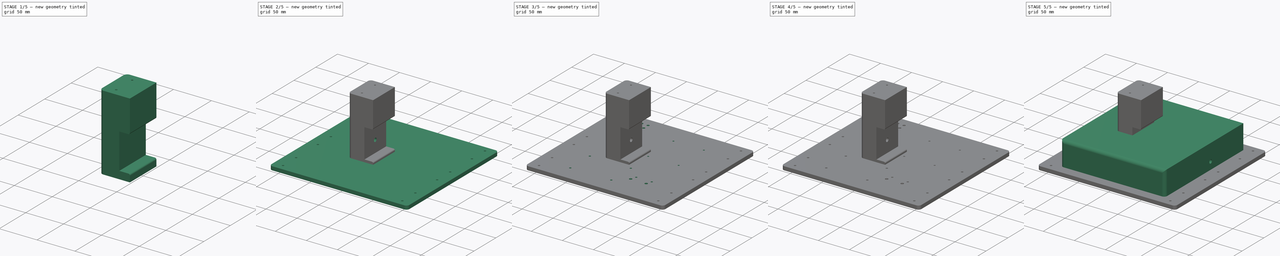
[diagram: build sequence overview — one tinted view per stage of 5, left to right]
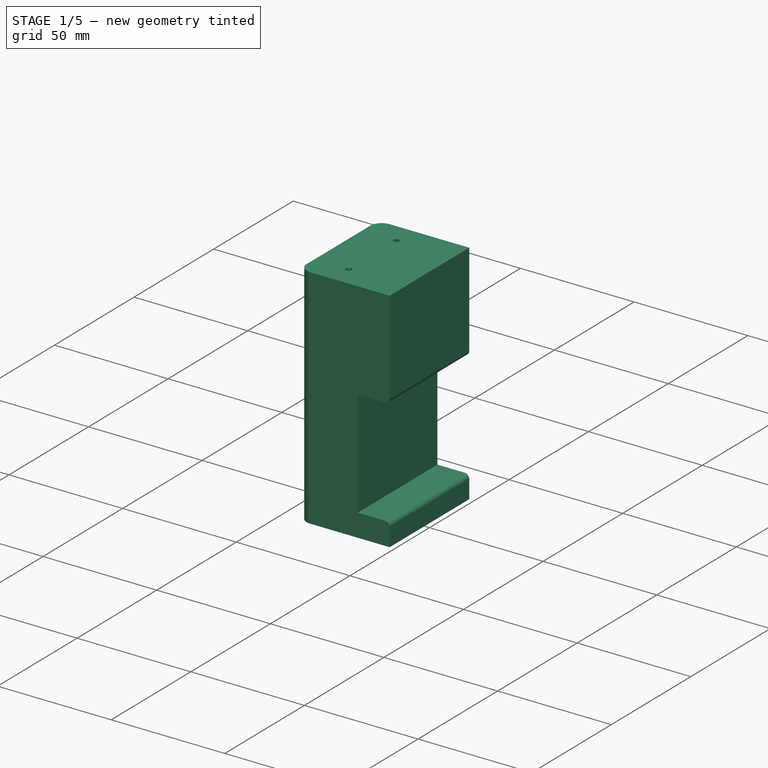
[diagram: stage 1 of 5 — iso view after this stage's code; geometry added in this stage tinted green]
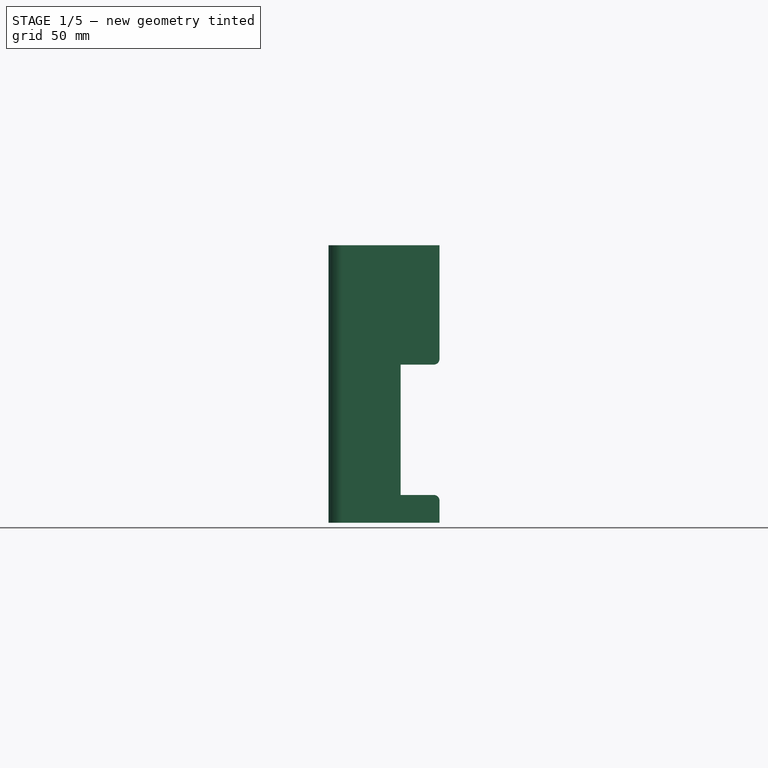
[diagram: stage 1 of 5 — front view after this stage's code; geometry added in this stage tinted green]
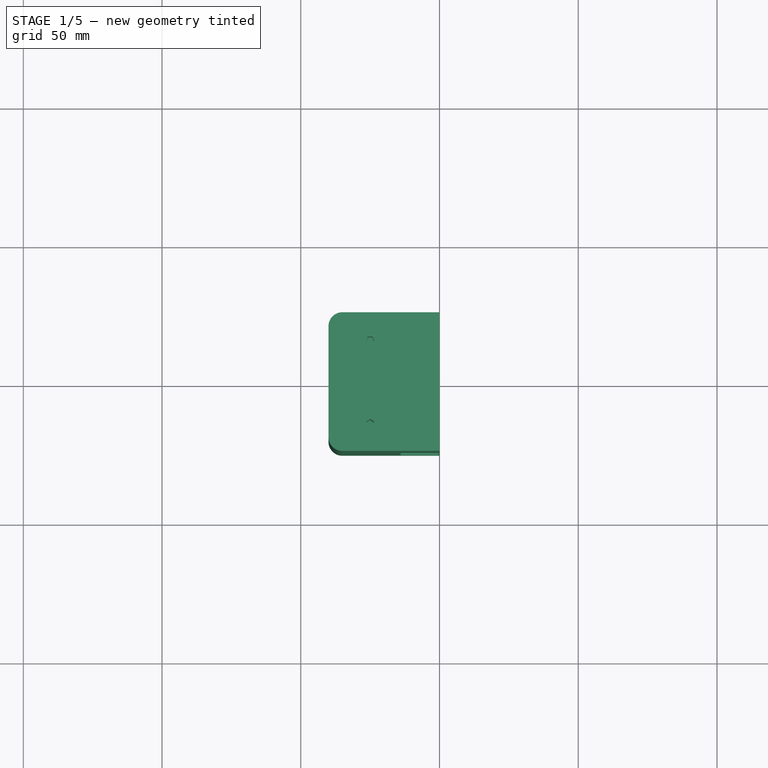
[diagram: stage 1 of 5 — top view after this stage's code; geometry added in this stage tinted green]
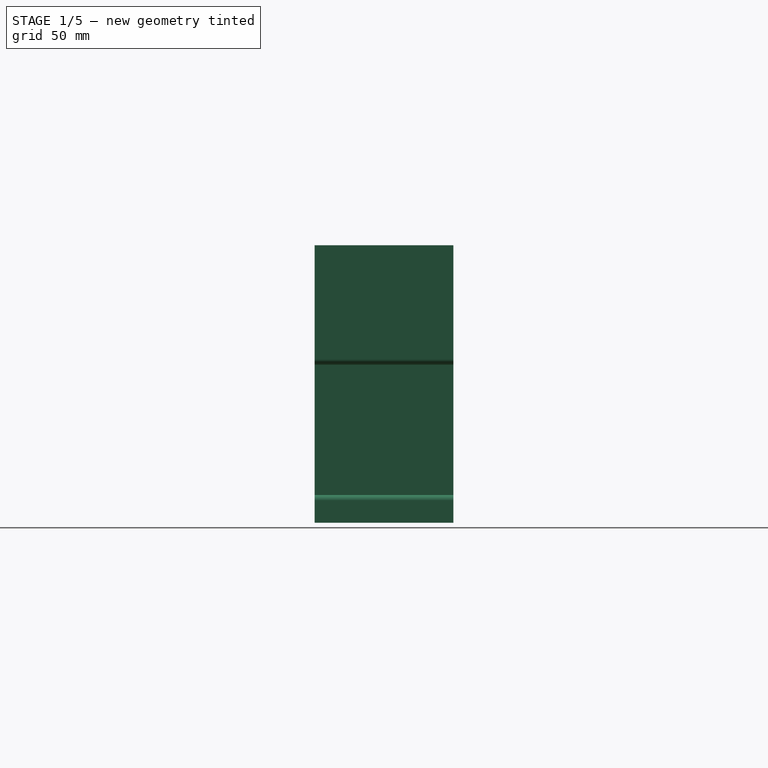
[diagram: stage 1 of 5 — right view after this stage's code; geometry added in this stage tinted green]
FCSTD DOCUMENT  (FreeCAD 0.19R14555 (Git shallow))
Label: case
License: All rights reserved
LicenseURL: http://en.wikipedia.org/wiki/All_rights_reserved
objects: PartDesign::CoordinateSystem×38, Sketcher::SketchObject×23, App::Link×23, PartDesign::Pocket×14, PartDesign::Body×10, PartDesign::Pad×9, PartDesign::Plane×6, PartDesign::Fillet×2, PartDesign::FeatureBase×2, PartDesign::Mirrored×1, PartDesign::LinearPattern×1, App::DocumentObjectGroup×1, App::Part×1
note: 131 computed .brp shape members not serialized (recipe doc carries the construction recipe); baked Part::Feature solids carry a one-line shape summary decoded from their .brp

FEATURE [Sketcher::SketchObject] Sketch004
  FullyConstrained = true
  MapMode = 5
  Support = -> [XY_Plane003]
  sketch-geometry (4):
    g0: LineSegment StartX=-84 StartY=90 StartZ=0 EndX=84 EndY=90 EndZ=0
    g1: LineSegment StartX=84 StartY=90 StartZ=0 EndX=84 EndY=-90 EndZ=0
    g2: LineSegment StartX=84 StartY=-90 StartZ=0 EndX=-84 EndY=-90 EndZ=0
    g3: LineSegment StartX=-84 StartY=-90 StartZ=0 EndX=-84 EndY=90 EndZ=0
  constraints (10):
    c: Coincident(g0,g1)
    c: Coincident(g1,g2)
    c: Coincident(g2,g3)
    c: Coincident(g3,g0)
    c: Horizontal(g2)
    c: Vertical(g1)
    c: Symmetric(g0,g2,g-1)
    c: Symmetric(g0,g0,g-2)
    c: DistanceX(g0,g0) = 168  'width'
    c: DistanceY(g3,g3) = 180  'depth'
FEATURE [PartDesign::Pad] Pad002  label="Motorola_GM900_Body"
  Direction = (1,1,1)
  Length = 45
  Length2 = 100
  Profile = -> Sketch004
  Type = 0
FEATURE [Sketcher::SketchObject] Sketch010
  FullyConstrained = true
  MapMode = 5
  Support = -> [XY_Plane008]
  expr: Constraints[9] = <<Lower_Panel_Outline>>.Constraints.corner_radius
  sketch-geometry (6):
    g0: LineSegment StartX=-35 StartY=25 StartZ=0 EndX=0 EndY=25 EndZ=0
    g1: LineSegment StartX=0 StartY=25 StartZ=0 EndX=0 EndY=-25 EndZ=0
    g2: LineSegment StartX=0 StartY=-25 StartZ=0 EndX=-35 EndY=-25 EndZ=0
    g3: LineSegment StartX=-40 StartY=-20 StartZ=0 EndX=-40 EndY=20 EndZ=0
    g4: ArcOfCircle CenterX=-35 CenterY=20 CenterZ=0 NormalX=0 NormalY=0 NormalZ=1 AngleXU=0 Radius=5 StartAngle=1.5708 EndAngle=3.14159
    g5: ArcOfCircle CenterX=-35 CenterY=-20 CenterZ=0 NormalX=0 NormalY=0 NormalZ=1 AngleXU=0 Radius=5 StartAngle=3.14159 EndAngle=4.71239
  constraints (15):
    c: Coincident(g0,g1)
    c: Coincident(g1,g2)
    c: Horizontal(g2)
    c: Vertical(g3)
    c: Tangent(g0,g4) = 1.5708
    c: Tangent(g3,g4) = 1.5708
    c: Tangent(g3,g5) = 1.5708
    c: Tangent(g2,g5) = 1.5708
    c: Equal(g4,g5)
    c: Radius(g4) = 5
    c: Symmetric(g0,g1,g-1)
    c: DistanceY(g1,g1) = 50  'depth'
    c: DistanceX(g3,g1) = 40  'width'
    c: PointOnObject(g1,g-2)
    c: Horizontal(g0)
FEATURE [PartDesign::Plane] DatumPlane003  label="Pillar_Top_Face"
  AttachmentOffset = pos=(0,0,100) rot=(0,0,1;0rad)
  Length = 76.4018
  MapMode = 5
  Placement = pos=(0,0,100) rot=(0,0,1;0rad)
  ResizeMode = 0
  Support = -> [XY_Plane008]
  Width = 61.4018
FEATURE [PartDesign::Pad] Pad007  label="Pillar_Body"
  Direction = (1,1,1)
  Length = 10
  Length2 = 100
  Profile = -> Sketch010
  Type = 3
  UpToFace = -> DatumPlane003 [Plane]
FEATURE [Sketcher::SketchObject] Sketch011
  ExternalGeometry = -> [Pad007]
  FullyConstrained = true
  MapMode = 5
  Placement = pos=(0,0,0) rot=(0.57735,0.57735,0.57735;2.0944rad)
  Support = -> [YZ_Plane008]
  expr: Constraints[11] = <<Motorola_GM900_Body>>.Length + 2mm
  sketch-geometry (4):
    g0: LineSegment StartX=-25 StartY=57 StartZ=0 EndX=25 EndY=57 EndZ=0
    g1: LineSegment StartX=25 StartY=57 StartZ=0 EndX=25 EndY=10 EndZ=0
    g2: LineSegment StartX=25 StartY=10 StartZ=0 EndX=-25 EndY=10 EndZ=0
    g3: LineSegment StartX=-25 StartY=10 StartZ=0 EndX=-25 EndY=57 EndZ=0
  constraints (13):
    c: Coincident(g0,g1)
    c: Coincident(g1,g2)
    c: Coincident(g2,g3)
    c: Coincident(g3,g0)
    c: Horizontal(g0)
    c: Horizontal(g2)
    c: Vertical(g1)
    c: Vertical(g3)
    c: PointOnObject(g0,g-3)
    c: PointOnObject(g0,g-4)
    c: DistanceY(g-1,g1) = 10  'lower_y_offset'
    c: DistanceY(g3,g3) = 47
    c: DistanceY(g0,g-4) = 43
FEATURE [PartDesign::Pocket] Pocket003  label="Pillar_Radio_Cutout"
  BaseFeature = -> Pad007
  Length = 14
  Length2 = 100
  Profile = -> Sketch011
  Type = 0
FEATURE [Sketcher::SketchObject] Sketch012
  ExternalGeometry = -> [Sketch010]
  FullyConstrained = true
  MapMode = 5
  Support = -> [XY_Plane008]
  sketch-geometry (13):
    g0: LineSegment StartX=-25 StartY=15 StartZ=0 EndX=-25 EndY=-15 EndZ=0
    g1: LineSegment StartX=-25 StartY=13.475 StartZ=0 EndX=-23.5496 EndY=14.5287 EndZ=0
    g2: LineSegment StartX=-23.5496 StartY=14.5287 StartZ=0 EndX=-24.1036 EndY=16.2338 EndZ=0
    g3: LineSegment StartX=-24.1036 StartY=16.2338 StartZ=0 EndX=-25.8964 EndY=16.2338 EndZ=0
    g4: LineSegment StartX=-25.8964 StartY=16.2338 StartZ=0 EndX=-26.4504 EndY=14.5287 EndZ=0
    g5: LineSegment StartX=-26.4504 StartY=14.5287 StartZ=0 EndX=-25 EndY=13.475 EndZ=0
    g6: Circle CenterX=-25 CenterY=15 CenterZ=0 NormalX=0 NormalY=0 NormalZ=1 AngleXU=0 Radius=1.525
    g7: LineSegment StartX=-25 StartY=-13.475 StartZ=0 EndX=-26.4504 EndY=-14.5287 EndZ=0
    g8: LineSegment StartX=-26.4504 StartY=-14.5287 StartZ=0 EndX=-25.8964 EndY=-16.2338 EndZ=0
    g9: LineSegment StartX=-25.8964 StartY=-16.2338 StartZ=0 EndX=-24.1036 EndY=-16.2338 EndZ=0
    g10: LineSegment StartX=-24.1036 StartY=-16.2338 StartZ=0 EndX=-23.5496 EndY=-14.5287 EndZ=0
    g11: LineSegment StartX=-23.5496 StartY=-14.5287 StartZ=0 EndX=-25 EndY=-13.475 EndZ=0
    g12: Circle CenterX=-25 CenterY=-15 CenterZ=0 NormalX=0 NormalY=0 NormalZ=1 AngleXU=0 Radius=1.525
  constraints (33):
    c: DistanceY(g0,g0) = 30  'between_centres'
    c: DistanceX(g-3,g0) = 10
    c: Symmetric(g0,g0,g-1)
    c: Coincident(g1,g2)
    c: Coincident(g2,g3)
    c: Coincident(g3,g4)
    c: Coincident(g4,g5)
    c: Coincident(g5,g1)
    c: Equal(g1, g2-g5) x4
    c: PointOnObject(g1,g6)
    c: PointOnObject(g2,g6)
    c: PointOnObject(g3,g6)
    c: PointOnObject(g4,g6)
    c: PointOnObject(g5,g6)
    c: Coincident(g6,g0)
    c: PointOnObject(g5,g0)
    c: Coincident(g7,g8)
    c: Coincident(g8,g9)
    c: Coincident(g9,g10)
    c: Coincident(g10,g11)
    c: Coincident(g11,g7)
    c: Equal(g7, g8-g11) x4
    c: PointOnObject(g7,g12)
    c: PointOnObject(g8,g12)
    c: PointOnObject(g9,g12)
    c: PointOnObject(g10,g12)
    c: PointOnObject(g11,g12)
    c: Coincident(g12,g0)
    c: PointOnObject(g11,g0)
    c: Equal(g6,g12)
    c: Diameter(g6) = 3.05
    c: DistanceX(g-5,g0) = 15  'x_offset'
    c: DistanceY(g-6,g0) = 10  'y_offset'
FEATURE [Sketcher::SketchObject] Sketch013
  ExternalGeometry = -> [Sketch010]
  FullyConstrained = true
  MapMode = 5
  Placement = pos=(0,0,100) rot=(0,0,1;0rad)
  Support = -> [DatumPlane003]
  expr: Constraints[38] = Sketch012.Constraints[36]
  expr: Constraints[3] = Sketch012.Constraints[1]
  expr: Constraints[0] = Sketch012.Constraints.between_centres
  sketch-geometry (13):
    g0: LineSegment StartX=-25 StartY=15 StartZ=0 EndX=-25 EndY=-15 EndZ=0
    g1: LineSegment StartX=-25 StartY=13.475 StartZ=0 EndX=-23.5496 EndY=14.5287 EndZ=0
    g2: LineSegment StartX=-23.5496 StartY=14.5287 StartZ=0 EndX=-24.1036 EndY=16.2338 EndZ=0
    g3: LineSegment StartX=-24.1036 StartY=16.2338 StartZ=0 EndX=-25.8964 EndY=16.2338 EndZ=0
    g4: LineSegment StartX=-25.8964 StartY=16.2338 StartZ=0 EndX=-26.4504 EndY=14.5287 EndZ=0
    g5: LineSegment StartX=-26.4504 StartY=14.5287 StartZ=0 EndX=-25 EndY=13.475 EndZ=0
    g6: Circle CenterX=-25 CenterY=15 CenterZ=0 NormalX=0 NormalY=0 NormalZ=1 AngleXU=0 Radius=1.525
    g7: LineSegment StartX=-25 StartY=-13.475 StartZ=0 EndX=-26.4504 EndY=-14.5287 EndZ=0
    g8: LineSegment StartX=-26.4504 StartY=-14.5287 StartZ=0 EndX=-25.8964 EndY=-16.2338 EndZ=0
    g9: LineSegment StartX=-25.8964 StartY=-16.2338 StartZ=0 EndX=-24.1036 EndY=-16.2338 EndZ=0
    g10: LineSegment StartX=-24.1036 StartY=-16.2338 StartZ=0 EndX=-23.5496 EndY=-14.5287 EndZ=0
    g11: LineSegment StartX=-23.5496 StartY=-14.5287 StartZ=0 EndX=-25 EndY=-13.475 EndZ=0
    g12: Circle CenterX=-25 CenterY=-15 CenterZ=0 NormalX=0 NormalY=0 NormalZ=1 AngleXU=0 Radius=1.525
  constraints (33):
    c: DistanceY(g0,g0) = 30
    c: DistanceY(g-5,g0) = 5
    c: DistanceY(g0,g-3) = 5
    c: DistanceX(g-3,g0) = 10
    c: Symmetric(g0,g0,g-1)
    c: Coincident(g1,g2)
    c: Coincident(g2,g3)
    c: Coincident(g3,g4)
    c: Coincident(g4,g5)
    c: Coincident(g5,g1)
    c: Equal(g1, g2-g5) x4
    c: PointOnObject(g1,g6)
    c: PointOnObject(g2,g6)
    c: PointOnObject(g3,g6)
    c: PointOnObject(g4,g6)
    c: PointOnObject(g5,g6)
    c: Coincident(g6,g0)
    c: PointOnObject(g5,g0)
    c: Coincident(g7,g8)
    c: Coincident(g8,g9)
    c: Coincident(g9,g10)
    c: Coincident(g10,g11)
    c: Coincident(g11,g7)
    c: Equal(g7, g8-g11) x4
    c: PointOnObject(g7,g12)
    c: PointOnObject(g8,g12)
    c: PointOnObject(g9,g12)
    c: PointOnObject(g10,g12)
    c: PointOnObject(g11,g12)
    c: Coincident(g12,g0)
    c: PointOnObject(g11,g0)
    c: Equal(g6,g12)
    c: Diameter(g6) = 3.05
FEATURE [PartDesign::Fillet] Fillet  label="Pillar_Radio_Cutout_Rounding"
  Base = -> Pocket003 [Edge28,Edge23]
  BaseFeature = -> Pocket003
  Radius = 2
  SupportTransform = false
FEATURE [PartDesign::Pocket] Pocket004  label="Pillar_Bottom_Holes"
  BaseFeature = -> Fillet
  Length = 20
  Length2 = 100
  Profile = -> Sketch012
  Reversed = true
  Type = 0
FEATURE [PartDesign::Pocket] Pocket005  label="Pillar_Top_Holes"
  BaseFeature = -> Pocket004
  Length = 20
  Length2 = 100
  Profile = -> Sketch013
  Type = 0
  expr: Length = Pocket004.Length
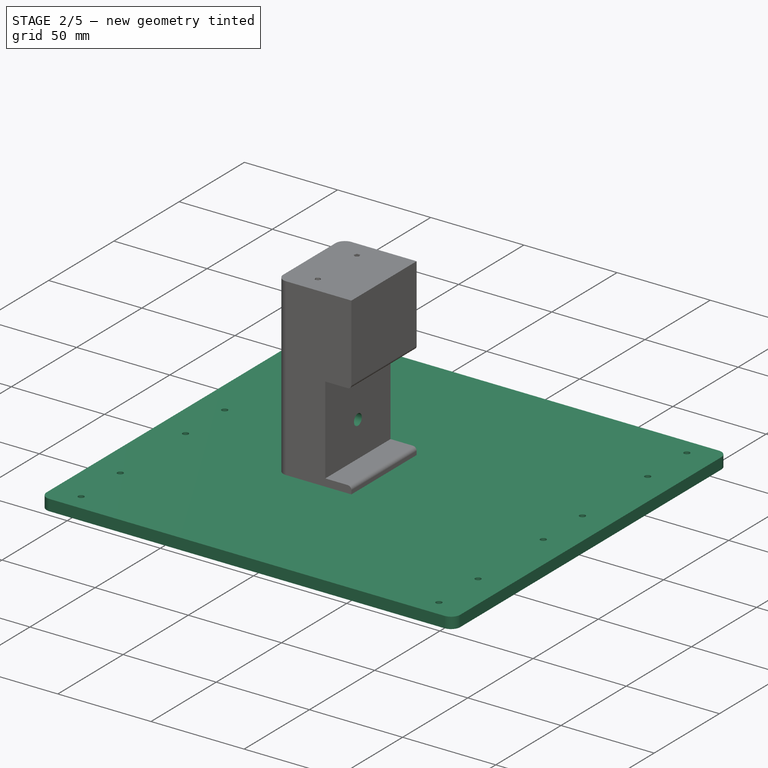
[diagram: stage 2 of 5 — iso view after this stage's code; geometry added in this stage tinted green]
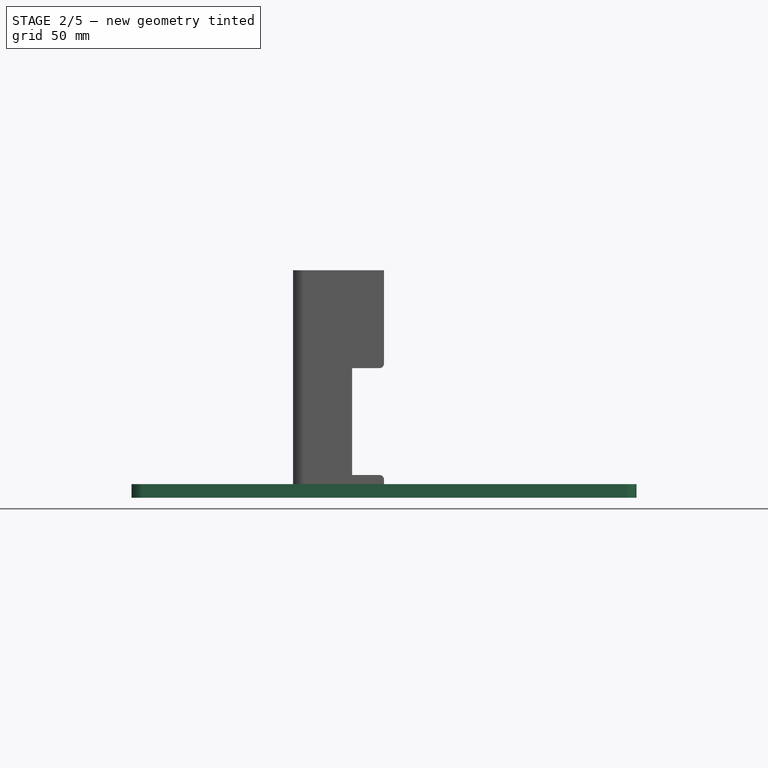
[diagram: stage 2 of 5 — front view after this stage's code; geometry added in this stage tinted green]
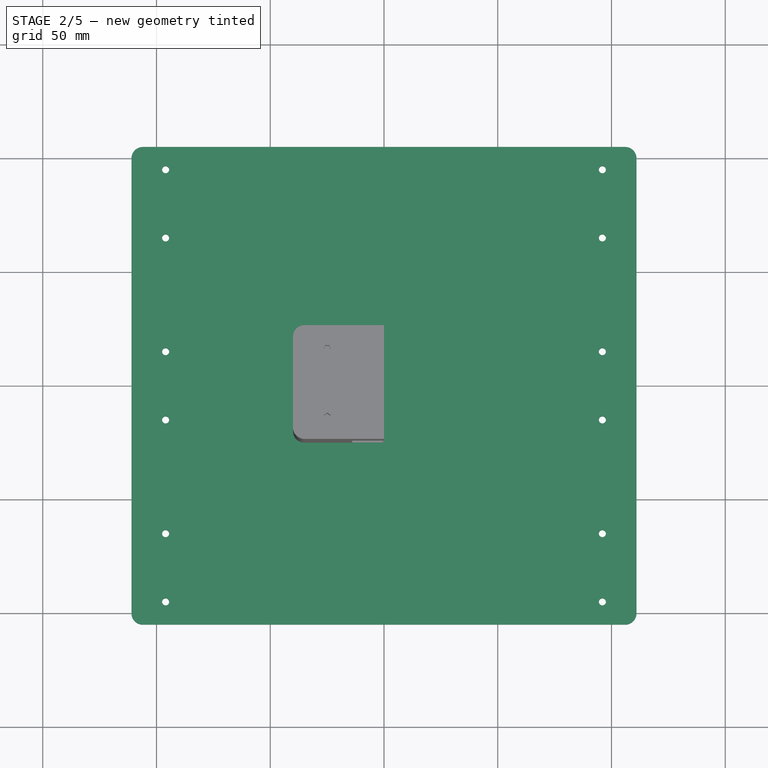
[diagram: stage 2 of 5 — top view after this stage's code; geometry added in this stage tinted green]
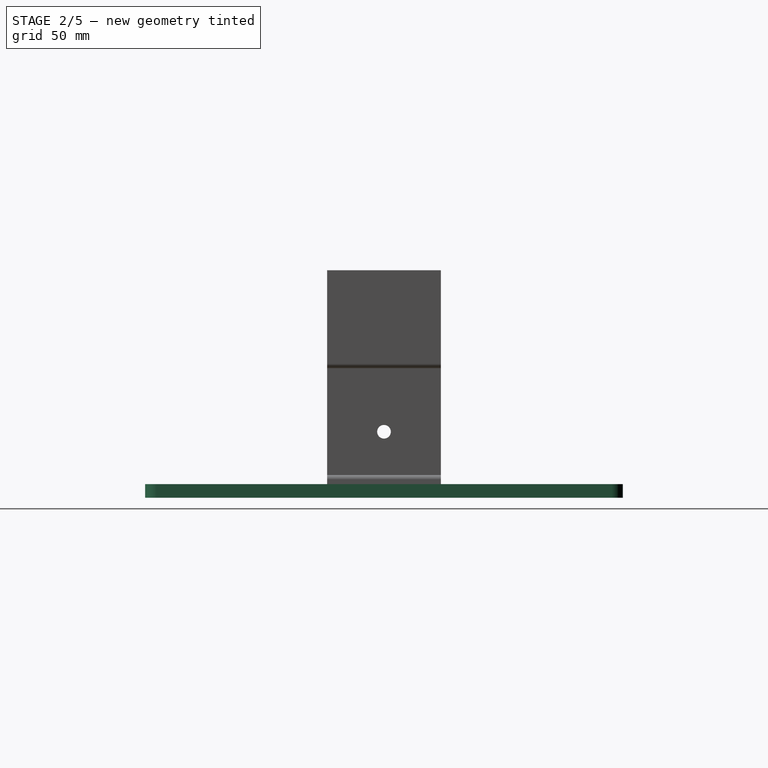
[diagram: stage 2 of 5 — right view after this stage's code; geometry added in this stage tinted green]
FEATURE [PartDesign::CoordinateSystem] Local_CS006  label="3mm_Standoff_Bottom"
  AttacherType = Attacher::AttachEngine3D
  MapMode = 45
  Placement = pos=(7.3e-15,0,0) rot=(0,0,1;0rad)
  Support = -> [Pad005]
FEATURE [PartDesign::CoordinateSystem] Local_CS007  label="3mm_Standoff_Top"
  AttacherType = Attacher::AttachEngine3D
  MapMode = 45
  Placement = pos=(7.3e-15,0,3) rot=(0,0,1;0rad)
  Support = -> [Pad005]
FEATURE [PartDesign::Body] Relay_PCB_standoff  label="3mm_Standoff"
  Group = -> [Sketch008,Pad005,Local_CS007,Local_CS006]
  Origin = -> Origin006
  Tip = -> Pad005
FEATURE [PartDesign::CoordinateSystem] Local_CS008
  AttacherType = Attacher::AttachEngine3D
  MapMode = 45
  Placement = pos=(-33,22.5,0) rot=(0,0,1;3.3e-05rad)
  Support = -> [Pocket]
FEATURE [PartDesign::CoordinateSystem] Local_CS009
  AttacherType = Attacher::AttachEngine3D
  MapMode = 45
  Placement = pos=(33,22.5,0) rot=(0,0,-1;1.1e-05rad)
  Support = -> [Pocket]
FEATURE [PartDesign::CoordinateSystem] Local_CS010
  AttacherType = Attacher::AttachEngine3D
  MapMode = 45
  Placement = pos=(33,-22.5,0) rot=(0,0,1;1.1e-05rad)
  Support = -> [Pocket]
FEATURE [PartDesign::Body] Relay_PCB
  Group = -> [DatumPlane,Sketch,Pad,Sketch001,Pocket,Local_CS,Local_CS008,Local_CS009,Local_CS010]
  Origin = -> Origin001
  Tip = -> Pocket
FEATURE [PartDesign::CoordinateSystem] Local_CS011  label="Raspberry_Pi_3_Hole_2_Bottom"
  AttacherType = Attacher::AttachEngine3D
  MapMode = 45
  Placement = pos=(-39,24.5,0) rot=(0,0,-1;5.6e-05rad)
  Support = -> [Pocket001]
FEATURE [PartDesign::CoordinateSystem] Local_CS012  label="Raspberry_Pi_3_Hole_3_Bottom"
  AttacherType = Attacher::AttachEngine3D
  MapMode = 45
  Placement = pos=(19,-24.5,0) rot=(0,0,-1;2.8e-05rad)
  Support = -> [Pocket001]
FEATURE [PartDesign::CoordinateSystem] Local_CS013  label="Raspberry_Pi_3_Hole_4_Bottom"
  AttacherType = Attacher::AttachEngine3D
  MapMode = 45
  Placement = pos=(-39,-24.5,0) rot=(0,0,1;1.9e-05rad)
  Support = -> [Pocket001]
FEATURE [PartDesign::Body] Raspberry_Pi_3
  Group = -> [DatumPlane001,Sketch002,Pad001,Sketch003,Pocket001,Local_CS003,Local_CS011,Local_CS012,Local_CS013]
  Origin = -> Origin002
  Tip = -> Pocket001
FEATURE [PartDesign::CoordinateSystem] LCS_0
  AttacherType = Attacher::AttachEngine3D
  MapMode = 2
  Support = -> [X_Axis007]
FEATURE [Sketcher::SketchObject] Sketch009  label="Lower_Panel_Outline"
  FullyConstrained = true
  MapMode = 5
  Support = -> [XY_Plane007]
  expr: .Constraints.width = Sketch004.Constraints.width + 2 * (40mm - 14mm) + 2mm
  sketch-geometry (8):
    g0: LineSegment StartX=-106 StartY=105 StartZ=0 EndX=106 EndY=105 EndZ=0
    g1: LineSegment StartX=111 StartY=100 StartZ=0 EndX=111 EndY=-100 EndZ=0
    g2: LineSegment StartX=106 StartY=-105 StartZ=0 EndX=-106 EndY=-105 EndZ=0
    g3: LineSegment StartX=-111 StartY=-100 StartZ=0 EndX=-111 EndY=100 EndZ=0
    g4: ArcOfCircle CenterX=-106 CenterY=100 CenterZ=0 NormalX=0 NormalY=0 NormalZ=1 AngleXU=0 Radius=5 StartAngle=1.5708 EndAngle=3.14159
    g5: ArcOfCircle CenterX=106 CenterY=100 CenterZ=0 NormalX=0 NormalY=0 NormalZ=1 AngleXU=0 Radius=5 StartAngle=-9e-16 EndAngle=1.5708
    g6: ArcOfCircle CenterX=106 CenterY=-100 CenterZ=0 NormalX=0 NormalY=0 NormalZ=1 AngleXU=0 Radius=5 StartAngle=4.71239 EndAngle=6.28319
    g7: ArcOfCircle CenterX=-106 CenterY=-100 CenterZ=0 NormalX=0 NormalY=0 NormalZ=1 AngleXU=0 Radius=5 StartAngle=3.14159 EndAngle=4.71239
  constraints (18):
    c: Horizontal(g0)
    c: Horizontal(g2)
    c: Vertical(g1)
    c: Vertical(g3)
    c: Tangent(g0,g4) = 1.5708
    c: Tangent(g3,g4) = 1.5708
    c: Tangent(g0,g5) = 1.5708
    c: Tangent(g1,g5) = 1.5708
    c: Tangent(g1,g6) = 1.5708
    c: Tangent(g2,g6) = 1.5708
    c: Tangent(g3,g7) = 1.5708
    c: Tangent(g2,g7) = 1.5708
    c: Equal(g5,g6)
    c: Radius(g5) = 5  'corner_radius'
    c: Symmetric(g4,g7,g-1)
    c: Symmetric(g4,g5,g-2)
    c: DistanceX(g3,g1) = 222  'width'
    c: DistanceY(g2,g0) = 210  'depth'
FEATURE [PartDesign::Plane] DatumPlane002  label="Lower_Panel_Top_Face"
  AttachmentOffset = pos=(0,0,6) rot=(0,0,1;0rad)
  Length = 60
  MapMode = 5
  Placement = pos=(0,0,6) rot=(0,0,1;0rad)
  ResizeMode = 0
  Support = -> [XY_Plane007]
  Width = 60
FEATURE [PartDesign::Pad] Pad006  label="Lower_Panel_Panel"
  Direction = (1,1,1)
  Length = 10
  Length2 = 100
  Profile = -> Sketch009
  Type = 3
  UpToFace = -> DatumPlane002 [Plane]
FEATURE [PartDesign::CoordinateSystem] Local_CS014  label="Pillar_Mounting_Holes_Top_Pos"
  AttacherType = Attacher::AttachEngine3D
  AttachmentOffset = pos=(0,0,0) rot=(0,0.707107,0.707107;3.14159rad)
  MapMode = 45
  Placement = pos=(-25,0,100) rot=(0,0,1;0rad)
  Support = -> [Pocket005]
FEATURE [PartDesign::CoordinateSystem] Local_CS016  label="Pillar_Mounting_Holes_Bottom_Pos"
  AttacherType = Attacher::AttachEngine3D
  AttachmentOffset = pos=(0,0,0) rot=(0,0.707107,0.707107;3.14159rad)
  MapMode = 45
  Placement = pos=(-25,0,0) rot=(0,0,1;0rad)
  Support = -> [Pocket005]
FEATURE [PartDesign::Body] Corner_Pillar  label="Pillar"
  Group = -> [Sketch010,DatumPlane003,Pad007,Sketch011,Pocket003,Fillet,Sketch012,Pocket004,Sketch013,Pocket005,Local_CS014,Local_CS016]
  Origin = -> Origin008
  Tip = -> Pocket005
FEATURE [Sketcher::SketchObject] Sketch015
  FullyConstrained = true
  MapMode = 5
  Placement = pos=(0,0,6) rot=(0,0,1;0rad)
  Support = -> [DatumPlane002]
  expr: Constraints[40] = <<Sketch012>>.Constraints.between_centres
  expr: Constraints[41] = <<Sketch012>>.Constraints.between_centres
  expr: Constraints[42] = <<Sketch012>>.Constraints.between_centres
  expr: .Constraints.corner_radius = Sketch009.Constraints[13]
  expr: .Constraints.width = Sketch009.Constraints[16]
  expr: .Constraints.depth = Sketch009.Constraints[17]
  expr: Constraints[62] = Sketch012.Constraints.x_offset
  expr: Constraints[63] = Sketch012.Constraints.y_offset
  sketch-geometry (28):
    g0: Circle CenterX=-96 CenterY=95 CenterZ=0 NormalX=0 NormalY=0 NormalZ=1 AngleXU=0 Radius=1.55
    g1: Circle CenterX=-96 CenterY=65 CenterZ=0 NormalX=0 NormalY=0 NormalZ=1 AngleXU=0 Radius=1.55
    g2: Circle CenterX=-96 CenterY=15 CenterZ=0 NormalX=0 NormalY=0 NormalZ=1 AngleXU=0 Radius=1.55
    g3: Circle CenterX=-96 CenterY=-15 CenterZ=0 NormalX=0 NormalY=0 NormalZ=1 AngleXU=0 Radius=1.55
    g4: Circle CenterX=-96 CenterY=-65 CenterZ=0 NormalX=0 NormalY=0 NormalZ=1 AngleXU=0 Radius=1.55
    g5: Circle CenterX=-96 CenterY=-95 CenterZ=0 NormalX=0 NormalY=0 NormalZ=1 AngleXU=0 Radius=1.55
    g6: Circle CenterX=96 CenterY=95 CenterZ=0 NormalX=0 NormalY=0 NormalZ=1 AngleXU=0 Radius=1.55
    g7: Circle CenterX=96 CenterY=65 CenterZ=0 NormalX=0 NormalY=0 NormalZ=1 AngleXU=0 Radius=1.55
    g8: Circle CenterX=96 CenterY=15 CenterZ=0 NormalX=0 NormalY=0 NormalZ=1 AngleXU=0 Radius=1.55
    g9: Circle CenterX=96 CenterY=-15 CenterZ=0 NormalX=0 NormalY=0 NormalZ=1 AngleXU=0 Radius=1.55
    g10: Circle CenterX=96 CenterY=-65 CenterZ=0 NormalX=0 NormalY=0 NormalZ=1 AngleXU=0 Radius=1.55
    g11: Circle CenterX=96 CenterY=-95 CenterZ=0 NormalX=0 NormalY=0 NormalZ=1 AngleXU=0 Radius=1.55
    g12: LineSegment StartX=-96 StartY=95 StartZ=0 EndX=-96 EndY=-95 EndZ=0
    g13: LineSegment StartX=96 StartY=95 StartZ=0 EndX=96 EndY=-95 EndZ=0
    g14: LineSegment StartX=-96 StartY=95 StartZ=0 EndX=96 EndY=95 EndZ=0
    g15: LineSegment StartX=96 StartY=65 StartZ=0 EndX=-96 EndY=65 EndZ=0
    g16: LineSegment StartX=-96 StartY=15 StartZ=0 EndX=96 EndY=15 EndZ=0
    g17: LineSegment StartX=96 StartY=-15 StartZ=0 EndX=-96 EndY=-15 EndZ=0
    g18: LineSegment StartX=-96 StartY=-65 StartZ=0 EndX=96 EndY=-65 EndZ=0
    g19: LineSegment StartX=96 StartY=-95 StartZ=0 EndX=-96 EndY=-95 EndZ=0
    g20: LineSegment StartX=-106 StartY=105 StartZ=0 EndX=106 EndY=105 EndZ=0
    g21: LineSegment StartX=111 StartY=100 StartZ=0 EndX=111 EndY=-100 EndZ=0
    g22: LineSegment StartX=106 StartY=-105 StartZ=0 EndX=-106 EndY=-105 EndZ=0
    g23: LineSegment StartX=-111 StartY=-100 StartZ=0 EndX=-111 EndY=100 EndZ=0
    g24: ArcOfCircle CenterX=-106 CenterY=100 CenterZ=0 NormalX=0 NormalY=0 NormalZ=1 AngleXU=0 Radius=5 StartAngle=1.5708 EndAngle=3.14159
    g25: ArcOfCircle CenterX=106 CenterY=100 CenterZ=0 NormalX=0 NormalY=0 NormalZ=1 AngleXU=0 Radius=5 StartAngle=1.2e-15 EndAngle=1.5708
    g26: ArcOfCircle CenterX=106 CenterY=-100 CenterZ=0 NormalX=0 NormalY=0 NormalZ=1 AngleXU=0 Radius=5 StartAngle=4.71239 EndAngle=6.28319
    g27: ArcOfCircle CenterX=-106 CenterY=-100 CenterZ=0 NormalX=0 NormalY=0 NormalZ=1 AngleXU=0 Radius=5 StartAngle=3.14159 EndAngle=4.71239
  constraints (67):
    c: Vertical(g13)
    c: Horizontal(g14)
    c: Horizontal(g15)
    c: Horizontal(g16)
    c: Horizontal(g17)
    c: Coincident(g14,g12)
    c: PointOnObject(g15,g12)
    c: PointOnObject(g16,g12)
    c: PointOnObject(g18,g12)
    c: Coincident(g19,g12)
    c: Coincident(g13,g19)
    c: PointOnObject(g18,g13)
    c: PointOnObject(g17,g13)
    c: Coincident(g13,g14)
    c: PointOnObject(g15,g13)
    c: PointOnObject(g16,g13)
    c: Coincident(g0,g12)
    c: Coincident(g1,g15)
    c: Coincident(g16,g2)
    c: Coincident(g3,g17)
    c: Coincident(g4,g18)
    c: Horizontal(g18)
    c: Coincident(g5,g12)
    c: Coincident(g18,g10)
    c: Coincident(g7,g15)
    c: Coincident(g13,g6)
    c: Coincident(g8,g16)
    c: Coincident(g9,g17)
    c: Equal(g0,g1)
    c: Equal(g1,g2)
    c: Equal(g2,g3)
    c: Equal(g3,g4)
    c: Equal(g4,g5)
    c: Equal(g5,g6)
    c: Equal(g6,g7)
    c: Equal(g7,g8)
    c: Equal(g8,g9)
    c: Equal(g9,g10)
    c: Equal(g10,g11)
    c: Coincident(g13,g11)
    c: DistanceY(g1,g0) = 30
    c: DistanceY(g3,g2) = 30
    c: DistanceY(g5,g4) = 30
    c: Diameter(g6) = 3.1
    c: Horizontal(g20)
    c: Horizontal(g22)
    c: Vertical(g21)
    c: Vertical(g23)
    c: Tangent(g20,g24) = 1.5708
    c: Tangent(g23,g24) = 1.5708
    c: Tangent(g20,g25) = 1.5708
    c: Tangent(g21,g25) = 1.5708
    c: Tangent(g21,g26) = 1.5708
    c: Tangent(g22,g26) = 1.5708
    c: Tangent(g23,g27) = 1.5708
    c: Tangent(g22,g27) = 1.5708
    c: Equal(g25,g26)
    c: Radius(g25) = 5  'corner_radius'
    c: Symmetric(g24,g27,g-1)
    c: Symmetric(g24,g25,g-2)
    c: DistanceX(g23,g21) = 222  'width'
    c: DistanceY(g22,g20) = 210  'depth'
    c: DistanceX(g23,g5) = 15
    c: DistanceY(g22,g5) = 10
    c: Symmetric(g5,g11,g-2)
    c: Symmetric(g0,g5,g-1)
    c: Symmetric(g2,g3,g-1)
FEATURE [PartDesign::Pocket] Pocket007
  BaseFeature = -> Pad006
  Length = 0
  Length2 = 100
  Profile = -> Sketch015
  Type = 3
  UpToFace = -> XY_Plane007
FEATURE [PartDesign::Body] Motorola_GM900
  Group = -> [Sketch004,Pad002,Sketch005,Pocket002,Mirrored,Local_CS001,Local_CS002,Fillet001]
  Origin = -> Origin003
  Tip = -> Fillet001
FEATURE [PartDesign::FeatureBase] Clone
  BaseFeature = -> Lower_Panel
FEATURE [PartDesign::CoordinateSystem] Local_CS035  label="Photosensor_PCB_1_Mounting_Hole"
  AttacherType = Attacher::AttachEngine3D
  MapMode = 45
  Placement = pos=(30,-51.5,0) rot=(0,0,1;0rad)
  Support = -> [LinearPattern]
FEATURE [PartDesign::CoordinateSystem] Local_CS036  label="Photosensor_PCB_2_Mounting_Hole"
  AttacherType = Attacher::AttachEngine3D
  MapMode = 45
  Placement = pos=(55,-51.5,0) rot=(0,0,1;0rad)
  Support = -> [LinearPattern]
FEATURE [PartDesign::Body] Body  label="Upper_Panel"
  BaseFeature = -> Lower_Panel
  Group = -> [Clone,Local_CS025,Sketch017,Pocket009,Local_CS026,Local_CS027,Local_CS028,Local_CS029,Sketch018,Pocket010,Local_CS030,Local_CS031,Local_CS032,Local_CS033,Sketch019,Pocket011,Sketch023,Pocket013,LinearPattern,Local_CS035,Local_CS036]
  Origin = -> Origin010
  Tip = -> LinearPattern
FEATURE [App::Link] _mm_Standoff  label="Photosensor_PCB_1_Standoff_Ass"
  AssemblyType = Asm4EE
  AttachedBy = #Local_CS007
  AttachedTo = Upper_Panel#Local_CS035
  LinkPlacement = pos=(30,-51.5,103) rot=(0,0,1;0rad)
  LinkedObject = -> Relay_PCB_standoff
  Placement = pos=(30,-51.5,103) rot=(0,0,1;0rad)
  expr: Placement = Upper_Panel.Placement * Local_CS035.Placement * AttachmentOffset * Local_CS007.Placement ^ -1
FEATURE [App::Link] Photosensor_PCB_1_Ass
  AssemblyType = Asm4EE
  AttachedBy = #Local_CS034
  AttachedTo = _mm_Standoff#Local_CS006
  LinkPlacement = pos=(30,-60,101.4) rot=(0,0,1;0rad)
  LinkedObject = -> Photosensor_PCB
  Placement = pos=(30,-60,101.4) rot=(0,0,1;0rad)
  expr: Placement = _mm_Standoff.Placement * Local_CS006.Placement * AttachmentOffset * Local_CS034.Placement ^ -1
FEATURE [App::Link] Photosensor_PCB_2_Standoff_Ass
  AssemblyType = Asm4EE
  AttachedBy = #Local_CS007
  AttachedTo = Upper_Panel#Local_CS036
  LinkPlacement = pos=(55,-51.5,103) rot=(0,0,1;0rad)
  LinkedObject = -> Relay_PCB_standoff
  Placement = pos=(55,-51.5,103) rot=(0,0,1;0rad)
  expr: Placement = Upper_Panel.Placement * Local_CS036.Placement * AttachmentOffset * Local_CS007.Placement ^ -1
FEATURE [App::Link] Photosensor_PCB_2_Ass
  AssemblyType = Asm4EE
  AttachedBy = #Local_CS034
  AttachedTo = Photosensor_PCB_2_Standoff_Ass#Local_CS006
  LinkPlacement = pos=(55,-60,101.4) rot=(0,0,1;0rad)
  LinkedObject = -> Photosensor_PCB
  Placement = pos=(55,-60,101.4) rot=(0,0,1;0rad)
  expr: Placement = Photosensor_PCB_2_Standoff_Ass.Placement * Local_CS006.Placement * AttachmentOffset * Local_CS034.Placement ^ -1
FEATURE [PartDesign::FeatureBase] Clone001
  BaseFeature = -> Corner_Pillar
FEATURE [Sketcher::SketchObject] Sketch024
  FullyConstrained = true
  MapMode = 5
  Placement = pos=(0,0,0) rot=(0.57735,0.57735,0.57735;2.0944rad)
  Support = -> [YZ_Plane013]
  sketch-geometry (1):
    g0: Circle CenterX=0 CenterY=29 CenterZ=0 NormalX=0 NormalY=0 NormalZ=1 AngleXU=0 Radius=3
  constraints (3):
    c: PointOnObject(g0,g-2)
    c: Diameter(g0) = 6
    c: DistanceY(g-1,g0) = 29
FEATURE [PartDesign::Plane] DatumPlane006  label="Pillar_Radio_Mount_Outer_Face"
  AttachmentOffset = pos=(0,0,-40) rot=(0,0,1;0rad)
  Length = 65.8114
  MapMode = 5
  Placement = pos=(-40,8.9e-15,-8.9e-15) rot=(0.57735,0.57735,0.57735;2.0944rad)
  ResizeMode = 0
  Support = -> [YZ_Plane013]
  Width = 140.811
  expr: .AttachmentOffset.Base.z = -<<Sketch010>>.Constraints.width
FEATURE [PartDesign::Pocket] Pocket014  label="Pillar_Radio_Mount_Hole"
  BaseFeature = -> Clone001
  Length = 0
  Length2 = 100
  Profile = -> Sketch024
  Type = 3
  UpToFace = -> DatumPlane006 [Plane]
FEATURE [PartDesign::CoordinateSystem] Local_CS037  label="Pillar_Radio_Mount_Hole_Pos"
  AttacherType = Attacher::AttachEngine3D
  MapMode = 45
  Placement = pos=(-14,2.37e-14,29) rot=(0.57735,0.57735,0.57735;2.0944rad)
  Support = -> [Pocket014]
FEATURE [Sketcher::SketchObject] Sketch025
  ExternalGeometry = -> [Pocket014]
  FullyConstrained = true
  MapMode = 5
  Placement = pos=(-40,8.9e-15,-8.9e-15) rot=(0.57735,0.57735,0.57735;2.0944rad)
  Support = -> [DatumPlane006]
  sketch-geometry (1):
    g0: Circle CenterX=8.9e-15 CenterY=29 CenterZ=0 NormalX=0 NormalY=0 NormalZ=1 AngleXU=0 Radius=7.5
  constraints (2):
    c: Coincident(g0,g-3)
    c: Diameter(g0) = 15
FEATURE [PartDesign::Pocket] Pocket015  label="Pillar_Radio_Mount_Hole_Recess"
  BaseFeature = -> Pocket014
  Length = 5
  Length2 = 100
  Profile = -> Sketch025
  Reversed = true
  Type = 0
FEATURE [App::Link] Pillar_Radio_Mount  label="Pillar_Left_Middle_Ass"
  AssemblyType = Asm4EE
  AttachedBy = #Local_CS038
  AttachedTo = Lower_Panel001#Local_CS020
  LinkPlacement = pos=(-71,1.41e-14,6) rot=(0,0,1;0rad)
  LinkedObject = -> Body001
  Placement = pos=(-71,1.41e-14,6) rot=(0,0,1;0rad)
  expr: Placement = Lower_Panel001.Placement * Local_CS020.Placement * AttachmentOffset * Local_CS038.Placement ^ -1
FEATURE [PartDesign::CoordinateSystem] Local_CS038  label="Pillar_Radio_Mount_Mounting_Holes_Bottom_Pos"
  AttacherType = Attacher::AttachEngine3D
  AttachmentOffset = pos=(0,0,0) rot=(0,0.707107,0.707107;3.14159rad)
  MapMode = 45
  Placement = pos=(-25,0,0) rot=(0,0,1;0rad)
  Support = -> [Pocket015]
FEATURE [PartDesign::Body] Body001  label="Pillar_Radio_Mount"
  BaseFeature = -> Corner_Pillar
  Group = -> [Clone001,DatumPlane006,Sketch024,Pocket014,Local_CS037,Sketch025,Pocket015,Local_CS038]
  Origin = -> Origin013
  Tip = -> Pocket015
FEATURE [App::DocumentObjectGroup] Parts
  Group = -> [Relay_PCB,Raspberry_Pi_3,Motorola_GM900,Raspberry_Pi_3_standoff,Relay_PCB_standoff,Lower_Panel,Corner_Pillar,Body,Photosensor_PCB,Body001]
FEATURE [App::Link] Pillar_Right_Middle_Ass
  AssemblyType = Asm4EE
  AttachedBy = #Local_CS038
  AttachedTo = Lower_Panel001#Local_CS023
  AttachmentOffset = pos=(0,0,0) rot=(0,0,1;3.14159rad)
  LinkPlacement = pos=(71,3.79e-14,6) rot=(0,0,-1;3.14159rad)
  LinkedObject = -> Body001
  Placement = pos=(71,3.79e-14,6) rot=(0,0,-1;3.14159rad)
  expr: Placement = Lower_Panel001.Placement * Local_CS023.Placement * AttachmentOffset * Local_CS038.Placement ^ -1
FEATURE [App::Part] Model
  Configuration = 0
  Group = -> [LCS_Origin,Lower_Panel001,Pillar,Pillar002,Pillar003,Pillar005,Motorola_GM900001,Upper_Panel,Raspberry_Pi_3_Standoff,Raspberry_Pi_3_Standoff001,Raspberry_Pi_3_Standoff002,Raspberry_Pi_3_Standoff003,Raspberry_Pi_3001,Relay_PCB_Standoff,Relay_PCB_Standoff001,Relay_PCB_Standoff002,Relay_PCB_Standoff003,Relay_PCB001,_mm_Standoff,Photosensor_PCB_1_Ass,Photosensor_PCB_2_Standoff_Ass,+3 more]
  Origin = -> Origin
  Type = Assembly4 Model
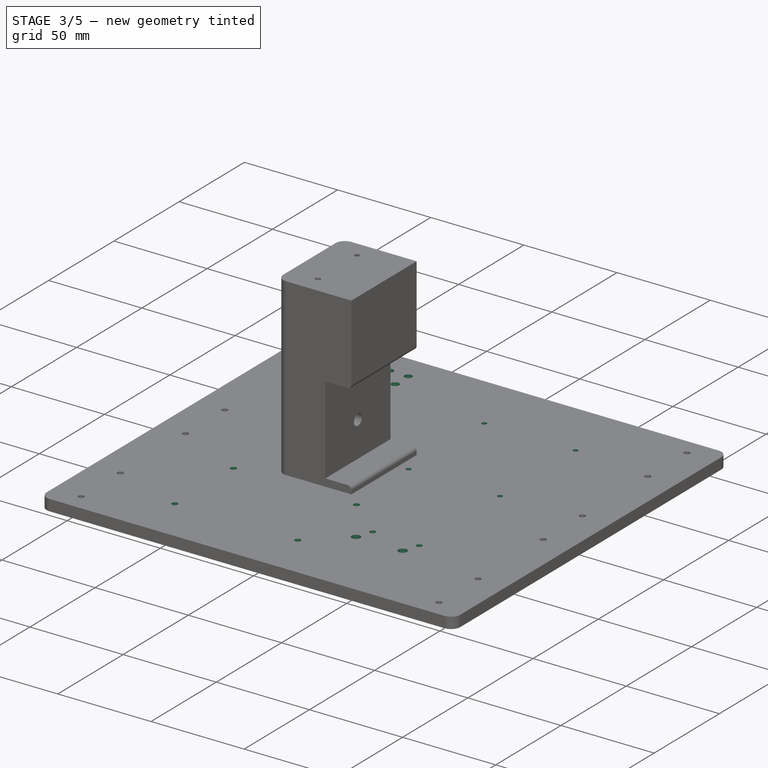
[diagram: stage 3 of 5 — iso view after this stage's code; geometry added in this stage tinted green]
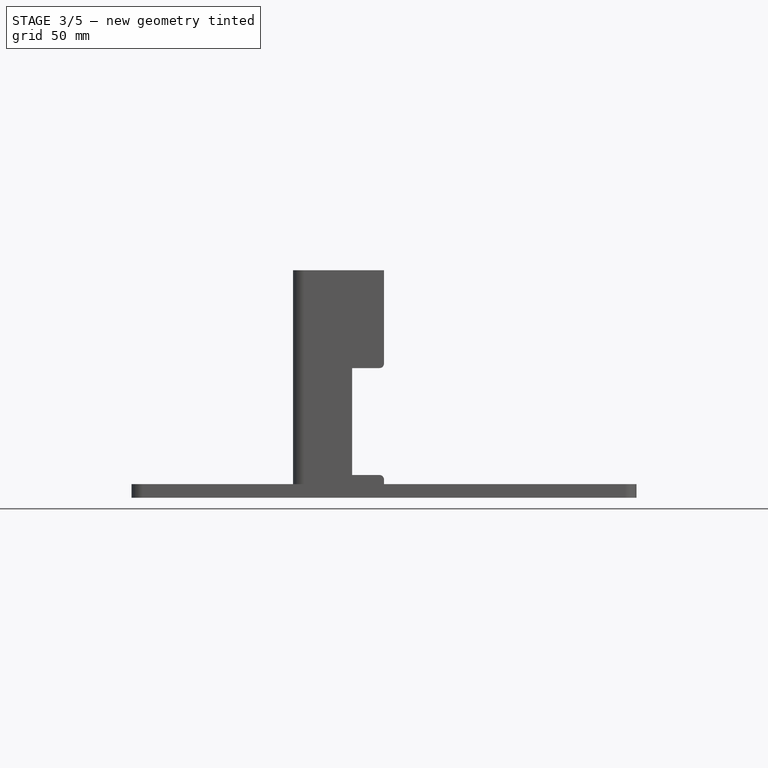
[diagram: stage 3 of 5 — front view after this stage's code; geometry added in this stage tinted green]
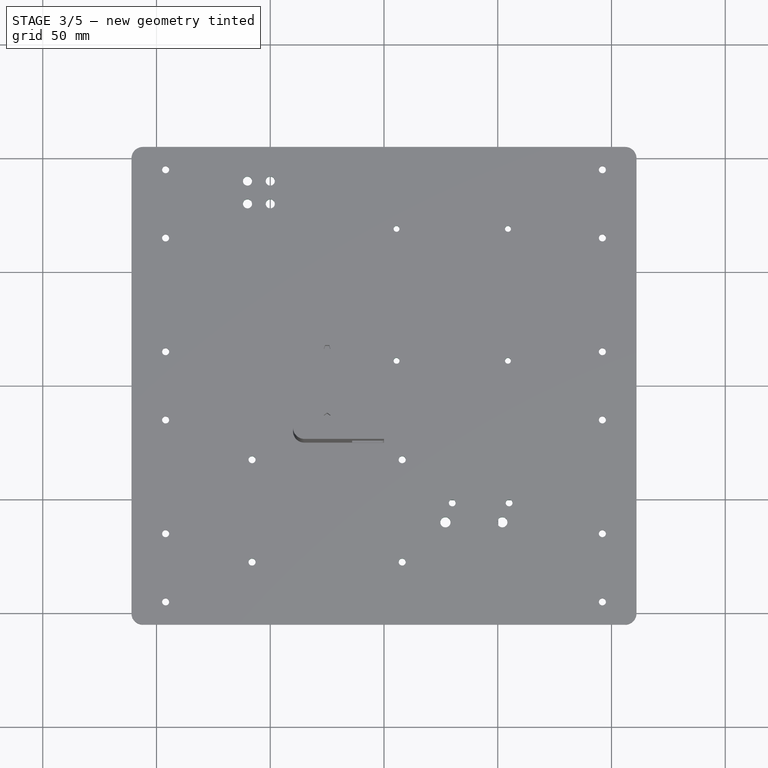
[diagram: stage 3 of 5 — top view after this stage's code; geometry added in this stage tinted green]
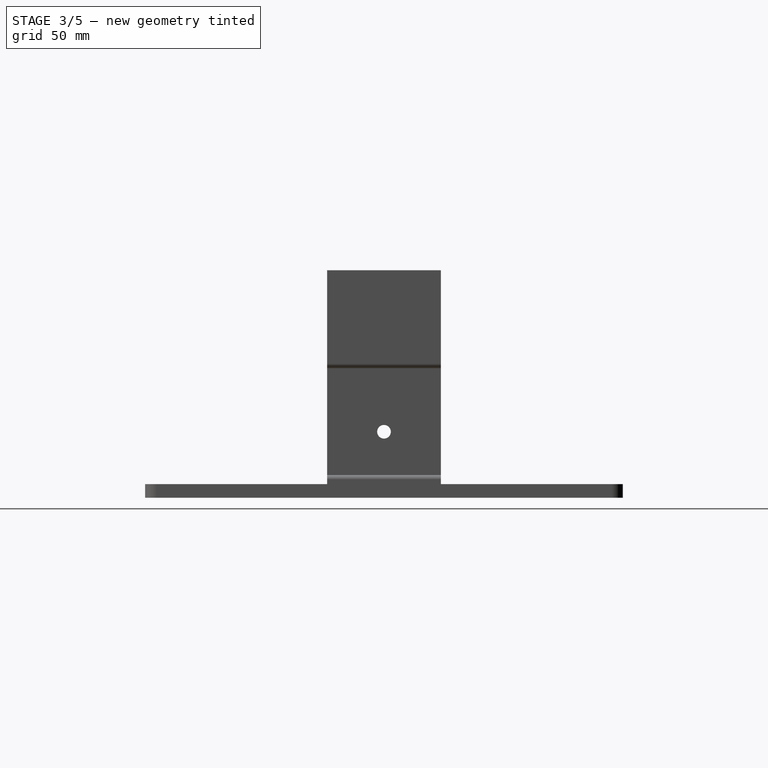
[diagram: stage 3 of 5 — right view after this stage's code; geometry added in this stage tinted green]
FEATURE [PartDesign::CoordinateSystem] Local_CS025
  AttacherType = Attacher::AttachEngine3D
  MapMode = 45
  Placement = pos=(-96,-80,0) rot=(0,0,1;0rad)
  Support = -> [Clone]
FEATURE [App::Link] Upper_Panel  label="Upper_Panel_Ass"
  AssemblyType = Asm4EE
  AttachedBy = #Local_CS025
  AttachedTo = Pillar002#Local_CS014
  LinkPlacement = pos=(5.116e-13,-5.969e-13,106) rot=(0,0,1;0rad)
  LinkedObject = -> Body
  Placement = pos=(5.116e-13,-5.969e-13,106) rot=(0,0,1;0rad)
  expr: Placement = Pillar002.Placement * Local_CS014.Placement * AttachmentOffset * Local_CS025.Placement ^ -1
FEATURE [Sketcher::SketchObject] Sketch017
  AttachmentOffset = pos=(30,50,0) rot=(0,0,1;1.5708rad)
  FullyConstrained = true
  MapMode = 5
  Placement = pos=(30,50,0) rot=(0,0,1;1.5708rad)
  Support = -> [XY_Plane010]
  expr: .Constraints.hole_diameter = Sketch003.Constraints[3]
  expr: Constraints[34] = Sketch003.Constraints[34]
  expr: Constraints[36] = Sketch003.Constraints[36]
  expr: Constraints[12] = Sketch003.Constraints[12]
  expr: Constraints[13] = Sketch003.Constraints[13]
  expr: Constraints[31] = Sketch003.Constraints[31]
  expr: Constraints[35] = Sketch003.Constraints[35]
  sketch-geometry (16):
    g0: Circle CenterX=-39 CenterY=24.5 CenterZ=0 NormalX=0 NormalY=0 NormalZ=1 AngleXU=0 Radius=1.3
    g1: Circle CenterX=19 CenterY=24.5 CenterZ=0 NormalX=0 NormalY=0 NormalZ=1 AngleXU=0 Radius=1.3
    g2: Circle CenterX=-39 CenterY=-24.5 CenterZ=0 NormalX=0 NormalY=0 NormalZ=1 AngleXU=0 Radius=1.3
    g3: Circle CenterX=19 CenterY=-24.5 CenterZ=0 NormalX=0 NormalY=0 NormalZ=1 AngleXU=0 Radius=1.3
    g4: LineSegment StartX=-39 StartY=24.5 StartZ=0 EndX=19 EndY=24.5 EndZ=0
    g5: LineSegment StartX=19 StartY=24.5 StartZ=0 EndX=19 EndY=-24.5 EndZ=0
    g6: LineSegment StartX=19 StartY=-24.5 StartZ=0 EndX=-39 EndY=-24.5 EndZ=0
    g7: LineSegment StartX=-39 StartY=-24.5 StartZ=0 EndX=-39 EndY=24.5 EndZ=0
    g8: LineSegment StartX=-39.5 StartY=28 StartZ=0 EndX=39.5 EndY=28 EndZ=0
    g9: LineSegment StartX=42.5 StartY=25 StartZ=0 EndX=42.5 EndY=-25 EndZ=0
    g10: LineSegment StartX=39.5 StartY=-28 StartZ=0 EndX=-39.5 EndY=-28 EndZ=0
    g11: LineSegment StartX=-42.5 StartY=-25 StartZ=0 EndX=-42.5 EndY=25 EndZ=0
    g12: ArcOfCircle CenterX=-39.5 CenterY=25 CenterZ=0 NormalX=0 NormalY=0 NormalZ=1 AngleXU=0 Radius=3 StartAngle=1.5708 EndAngle=3.14159
    g13: ArcOfCircle CenterX=-39.5 CenterY=-25 CenterZ=0 NormalX=0 NormalY=0 NormalZ=1 AngleXU=0 Radius=3 StartAngle=3.14159 EndAngle=4.71239
    g14: ArcOfCircle CenterX=39.5 CenterY=-25 CenterZ=0 NormalX=0 NormalY=0 NormalZ=1 AngleXU=0 Radius=3 StartAngle=4.71239 EndAngle=6.28319
    g15: ArcOfCircle CenterX=39.5 CenterY=25 CenterZ=0 NormalX=0 NormalY=0 NormalZ=1 AngleXU=0 Radius=3 StartAngle=0 EndAngle=1.5708
  constraints (37):
    c: Equal(g0,g1)
    c: Equal(g1,g2)
    c: Equal(g2,g3)
    c: Diameter(g1) = 2.6  'hole_diameter'
    c: Coincident(g4,g5)
    c: Coincident(g5,g6)
    c: Coincident(g6,g7)
    c: Coincident(g7,g4)
    c: Horizontal(g4)
    c: Horizontal(g6)
    c: Vertical(g5)
    c: Symmetric(g4,g6,g-1)
    c: DistanceY(g7,g7) = 49
    c: DistanceX(g4,g4) = 58
    c: Coincident(g1,g4)
    c: Coincident(g3,g5)
    c: Coincident(g4,g0)
    c: Coincident(g6,g2)
    c: Horizontal(g8)
    c: Horizontal(g10)
    c: Vertical(g9)
    c: Vertical(g11)
    c: Tangent(g8,g12) = 1.5708
    c: Tangent(g11,g12) = 1.5708
    c: Tangent(g11,g13) = 1.5708
    c: Tangent(g10,g13) = 1.5708
    c: Tangent(g10,g14) = 1.5708
    c: Tangent(g9,g14) = 1.5708
    c: Tangent(g9,g15) = 1.5708
    c: Tangent(g8,g15) = 1.5708
    c: Equal(g13,g14)
    c: Radius(g15) = 3
    c: Symmetric(g8,g10,g-1)
    c: Symmetric(g11,g9,g-2)
    c: DistanceX(g11,g9) = 85
    c: DistanceY(g10,g8) = 56
    c: DistanceX(g11,g2) = 3.5
FEATURE [PartDesign::Pocket] Pocket009  label="Upper_Panel_Pi_Mounting_Holes"
  BaseFeature = -> Clone
  Length = 5
  Length2 = 100
  Profile = -> Sketch017
  Reversed = true
  Type = 1
FEATURE [PartDesign::CoordinateSystem] Local_CS026  label="Upper_Panel_Pi_Mounting_Hole_1"
  AttacherType = Attacher::AttachEngine3D
  AttachmentOffset = pos=(0,0,0) rot=(1,0,0;3.14159rad)
  MapMode = 45
  Placement = pos=(5.5,11,0) rot=(0.70712,0.707094,0;3.14159rad)
  Support = -> [Pocket009]
FEATURE [PartDesign::CoordinateSystem] Local_CS027  label="Upper_Panel_Pi_Mounting_Hole_2"
  AttacherType = Attacher::AttachEngine3D
  AttachmentOffset = pos=(0,0,0) rot=(1,0,0;3.14159rad)
  MapMode = 45
  Placement = pos=(54.5,11,0) rot=(0.70708,0.707133,0;3.14159rad)
  Support = -> [Pocket009]
FEATURE [PartDesign::CoordinateSystem] Local_CS028  label="Upper_Panel_Pi_Mounting_Hole_3"
  AttacherType = Attacher::AttachEngine3D
  AttachmentOffset = pos=(0,0,0) rot=(1,0,0;3.14159rad)
  MapMode = 45
  Placement = pos=(5.5,69,0) rot=(0.7071,0.707113,0;3.14159rad)
  Support = -> [Pocket009]
FEATURE [PartDesign::CoordinateSystem] Local_CS029  label="Upper_Panel_Pi_Mounting_Hole_4"
  AttacherType = Attacher::AttachEngine3D
  AttachmentOffset = pos=(0,0,0) rot=(1,0,0;3.14159rad)
  MapMode = 45
  Placement = pos=(54.5,69,0) rot=(0.707107,0.707107,0;3.14159rad)
  Support = -> [Pocket009]
FEATURE [App::Link] Raspberry_Pi_3_Standoff  label="Raspberry_Pi_3_Standoff_1_Ass"
  AssemblyType = Asm4EE
  AttachedBy = #Local_CS004
  AttachedTo = Upper_Panel#Local_CS026
  LinkPlacement = pos=(5.5,11,106) rot=(0.70712,0.707094,0;3.14159rad)
  LinkedObject = -> Raspberry_Pi_3_standoff
  Placement = pos=(5.5,11,106) rot=(0.70712,0.707094,0;3.14159rad)
  expr: Placement = Upper_Panel.Placement * Local_CS026.Placement * AttachmentOffset * Local_CS004.Placement ^ -1
FEATURE [App::Link] Raspberry_Pi_3_Standoff001  label="Raspberry_Pi_3_Standoff_2_Ass"
  AssemblyType = Asm4EE
  AttachedBy = #Local_CS004
  AttachedTo = Upper_Panel#Local_CS027
  LinkPlacement = pos=(54.5,11,106) rot=(0.70708,0.707133,0;3.14159rad)
  LinkedObject = -> Raspberry_Pi_3_standoff
  Placement = pos=(54.5,11,106) rot=(0.70708,0.707133,0;3.14159rad)
  expr: Placement = Upper_Panel.Placement * Local_CS027.Placement * AttachmentOffset * Local_CS004.Placement ^ -1
FEATURE [App::Link] Raspberry_Pi_3_Standoff002  label="Raspberry_Pi_3_Standoff_3_Ass"
  AssemblyType = Asm4EE
  AttachedBy = #Local_CS004
  AttachedTo = Upper_Panel#Local_CS028
  LinkPlacement = pos=(5.5,69,106) rot=(0.7071,0.707113,0;3.14159rad)
  LinkedObject = -> Raspberry_Pi_3_standoff
  Placement = pos=(5.5,69,106) rot=(0.7071,0.707113,0;3.14159rad)
  expr: Placement = Upper_Panel.Placement * Local_CS028.Placement * AttachmentOffset * Local_CS004.Placement ^ -1
FEATURE [App::Link] Raspberry_Pi_3_Standoff003  label="Raspberry_Pi_3_Standoff_4_Ass"
  AssemblyType = Asm4EE
  AttachedBy = #Local_CS004
  AttachedTo = Upper_Panel#Local_CS029
  LinkPlacement = pos=(54.5,69,106) rot=(0.707107,0.707107,0;3.14159rad)
  LinkedObject = -> Raspberry_Pi_3_standoff
  Placement = pos=(54.5,69,106) rot=(0.707107,0.707107,0;3.14159rad)
  expr: Placement = Upper_Panel.Placement * Local_CS029.Placement * AttachmentOffset * Local_CS004.Placement ^ -1
FEATURE [App::Link] Raspberry_Pi_3001  label="Raspberry_Pi_3_Ass"
  AssemblyType = Asm4EE
  AttachedBy = #Local_CS013
  AttachedTo = Raspberry_Pi_3_Standoff#Local_CS005
  LinkPlacement = pos=(30.0007,49.9995,103) rot=(0.707113,0.7071,0;3.14159rad)
  LinkedObject = -> Raspberry_Pi_3
  Placement = pos=(30.0007,49.9995,103) rot=(0.707113,0.7071,0;3.14159rad)
  expr: Placement = Raspberry_Pi_3_Standoff.Placement * Local_CS005.Placement * AttachmentOffset * Local_CS013.Placement ^ -1
FEATURE [Sketcher::SketchObject] Sketch018
  AttachmentOffset = pos=(-25,-55,0) rot=(0,0,1;0rad)
  FullyConstrained = true
  MapMode = 5
  Placement = pos=(-25,-55,0) rot=(0,0,1;0rad)
  Support = -> [XY_Plane010]
  expr: .Constraints.hole_diameter = Sketch001.Constraints[3]
  expr: Constraints[16] = Sketch001.Constraints[16]
  expr: Constraints[17] = Sketch001.Constraints[17]
  sketch-geometry (8):
    g0: Circle CenterX=-33 CenterY=22.5 CenterZ=0 NormalX=0 NormalY=0 NormalZ=1 AngleXU=0 Radius=1.55
    g1: Circle CenterX=33 CenterY=22.5 CenterZ=0 NormalX=0 NormalY=0 NormalZ=1 AngleXU=0 Radius=1.55
    g2: Circle CenterX=-33 CenterY=-22.5 CenterZ=0 NormalX=0 NormalY=0 NormalZ=1 AngleXU=0 Radius=1.55
    g3: Circle CenterX=33 CenterY=-22.5 CenterZ=0 NormalX=0 NormalY=0 NormalZ=1 AngleXU=0 Radius=1.55
    g4: LineSegment StartX=-33 StartY=22.5 StartZ=0 EndX=33 EndY=22.5 EndZ=0
    g5: LineSegment StartX=33 StartY=22.5 StartZ=0 EndX=33 EndY=-22.5 EndZ=0
    g6: LineSegment StartX=33 StartY=-22.5 StartZ=0 EndX=-33 EndY=-22.5 EndZ=0
    g7: LineSegment StartX=-33 StartY=-22.5 StartZ=0 EndX=-33 EndY=22.5 EndZ=0
  constraints (18):
    c: Equal(g0,g1)
    c: Equal(g1,g2)
    c: Equal(g2,g3)
    c: Diameter(g1) = 3.1  'hole_diameter'
    c: Coincident(g4,g5)
    c: Coincident(g5,g6)
    c: Coincident(g6,g7)
    c: Coincident(g7,g4)
    c: Horizontal(g6)
    c: Vertical(g5)
    c: Symmetric(g4,g6,g-1)
    c: Symmetric(g4,g4,g-2)
    c: Coincident(g0,g4)
    c: Coincident(g2,g6)
    c: Coincident(g1,g4)
    c: Coincident(g3,g5)
    c: DistanceX(g4,g4) = 66
    c: DistanceY(g7,g7) = 45
FEATURE [PartDesign::Pocket] Pocket010  label="Upper_Panel_Relay_Mounting_Holes"
  BaseFeature = -> Pocket009
  Length = 5
  Length2 = 100
  Profile = -> Sketch018
  Reversed = true
  Type = 1
FEATURE [PartDesign::CoordinateSystem] Local_CS030  label="Upper_Panel_Relay_Mounting_Hole_1"
  AttacherType = Attacher::AttachEngine3D
  AttachmentOffset = pos=(0,0,0) rot=(1,0,0;3.14159rad)
  MapMode = 45
  Placement = pos=(8,-77.5,0) rot=(1,6e-06,0;3.14159rad)
  Support = -> [Pocket010]
FEATURE [PartDesign::CoordinateSystem] Local_CS031  label="Upper_Panel_Relay_Mounting_Hole_2"
  AttacherType = Attacher::AttachEngine3D
  AttachmentOffset = pos=(0,0,0) rot=(1,0,0;3.14159rad)
  MapMode = 45
  Placement = pos=(8,-32.5,0) rot=(1,0,0;3.14159rad)
  Support = -> [Pocket010]
FEATURE [PartDesign::CoordinateSystem] Local_CS032  label="Upper_Panel_Relay_Mounting_Hole_3"
  AttacherType = Attacher::AttachEngine3D
  AttachmentOffset = pos=(0,0,0) rot=(1,0,0;3.14159rad)
  MapMode = 45
  Placement = pos=(-58,-77.5,0) rot=(1,-4.4e-05,0;3.14159rad)
  Support = -> [Pocket010]
FEATURE [PartDesign::CoordinateSystem] Local_CS033  label="Upper_Panel_Relay_Mounting_Hole_4"
  AttacherType = Attacher::AttachEngine3D
  AttachmentOffset = pos=(0,0,0) rot=(1,0,0;3.14159rad)
  MapMode = 45
  Placement = pos=(-58,-32.5,0) rot=(1,0,0;3.14159rad)
  Support = -> [Pocket010]
FEATURE [App::Link] Relay_PCB_Standoff  label="Relay_PCB_Standoff_1_Ass"
  AssemblyType = Asm4EE
  AttachedBy = #Local_CS006
  AttachedTo = Upper_Panel#Local_CS030
  LinkPlacement = pos=(8,-77.5,106) rot=(1,6e-06,0;3.14159rad)
  LinkedObject = -> Relay_PCB_standoff
  Placement = pos=(8,-77.5,106) rot=(1,6e-06,0;3.14159rad)
  expr: Placement = Upper_Panel.Placement * Local_CS030.Placement * AttachmentOffset * Local_CS006.Placement ^ -1
FEATURE [App::Link] Relay_PCB_Standoff001  label="Relay_PCB_Standoff_2_Ass"
  AssemblyType = Asm4EE
  AttachedBy = #Local_CS006
  AttachedTo = Upper_Panel#Local_CS031
  LinkPlacement = pos=(8,-32.5,106) rot=(1,0,0;3.14159rad)
  LinkedObject = -> Relay_PCB_standoff
  Placement = pos=(8,-32.5,106) rot=(1,0,0;3.14159rad)
  expr: Placement = Upper_Panel.Placement * Local_CS031.Placement * AttachmentOffset * Local_CS006.Placement ^ -1
FEATURE [App::Link] Relay_PCB_Standoff002  label="Relay_PCB_Standoff_3_Ass"
  AssemblyType = Asm4EE
  AttachedBy = #Local_CS006
  AttachedTo = Upper_Panel#Local_CS032
  LinkPlacement = pos=(-58,-77.5,106) rot=(1,-4.4e-05,0;3.14159rad)
  LinkedObject = -> Relay_PCB_standoff
  Placement = pos=(-58,-77.5,106) rot=(1,-4.4e-05,0;3.14159rad)
  expr: Placement = Upper_Panel.Placement * Local_CS032.Placement * AttachmentOffset * Local_CS006.Placement ^ -1
FEATURE [App::Link] Relay_PCB_Standoff003  label="Relay_PCB_Standoff_4_Ass"
  AssemblyType = Asm4EE
  AttachedBy = #Local_CS006
  AttachedTo = Upper_Panel#Local_CS033
  LinkPlacement = pos=(-58,-32.5,106) rot=(1,0,0;3.14159rad)
  LinkedObject = -> Relay_PCB_standoff
  Placement = pos=(-58,-32.5,106) rot=(1,0,0;3.14159rad)
  expr: Placement = Upper_Panel.Placement * Local_CS033.Placement * AttachmentOffset * Local_CS006.Placement ^ -1
FEATURE [App::Link] Relay_PCB001  label="Relay_PCB_Ass"
  AssemblyType = Asm4EE
  AttachedBy = #Local_CS009
  AttachedTo = Relay_PCB_Standoff#Local_CS007
  LinkPlacement = pos=(-25,-55,103) rot=(1,0,0;3.14159rad)
  LinkedObject = -> Relay_PCB
  Placement = pos=(-25,-55,103) rot=(1,0,0;3.14159rad)
  expr: Placement = Relay_PCB_Standoff.Placement * Local_CS007.Placement * AttachmentOffset * Local_CS009.Placement ^ -1
FEATURE [Sketcher::SketchObject] Sketch019
  FullyConstrained = true
  MapMode = 5
  Support = -> [XY_Plane010]
  expr: Constraints[18] = <<Lower_Panel_Outline>>.Constraints.depth / 2 - 15mm
  sketch-geometry (8):
    g0: Circle CenterX=-60 CenterY=90 CenterZ=0 NormalX=0 NormalY=0 NormalZ=1 AngleXU=0 Radius=2
    g1: Circle CenterX=-50 CenterY=90 CenterZ=0 NormalX=0 NormalY=0 NormalZ=1 AngleXU=0 Radius=2
    g2: Circle CenterX=-60 CenterY=80 CenterZ=0 NormalX=0 NormalY=0 NormalZ=1 AngleXU=0 Radius=2
    g3: Circle CenterX=-50 CenterY=80 CenterZ=0 NormalX=0 NormalY=0 NormalZ=1 AngleXU=0 Radius=2
    g4: LineSegment StartX=-60 StartY=90 StartZ=0 EndX=-50 EndY=90 EndZ=0
    g5: LineSegment StartX=-50 StartY=90 StartZ=0 EndX=-50 EndY=80 EndZ=0
    g6: LineSegment StartX=-50 StartY=80 StartZ=0 EndX=-60 EndY=80 EndZ=0
    g7: LineSegment StartX=-60 StartY=80 StartZ=0 EndX=-60 EndY=90 EndZ=0
  constraints (20):
    c: Equal(g0,g1)
    c: Equal(g1,g2)
    c: Equal(g2,g3)
    c: Coincident(g4,g5)
    c: Coincident(g5,g6)
    c: Coincident(g6,g7)
    c: Coincident(g7,g4)
    c: Horizontal(g4)
    c: Horizontal(g6)
    c: Vertical(g5)
    c: Vertical(g7)
    c: Coincident(g0,g4)
    c: Coincident(g4,g1)
    c: Coincident(g6,g2)
    c: Coincident(g5,g3)
    c: Diameter(g1) = 4
    c: Equal(g4,g7)
    c: DistanceY(g7,g7) = 10
    c: DistanceY(g-1,g1) = 90
    c: DistanceX(g3,g-1) = 50
FEATURE [PartDesign::Pocket] Pocket011  label="Upper_Panel_Cable_Clamp"
  BaseFeature = -> Pocket010
  Length = 5
  Length2 = 100
  Profile = -> Sketch019
  Reversed = true
  Type = 1
FEATURE [PartDesign::CoordinateSystem] Local_CS034  label="Photosensor_PCB_Mounting_Hole_Pos"
  AttacherType = Attacher::AttachEngine3D
  MapMode = 45
  Placement = pos=(7.1e-15,8.5,1.6) rot=(0,0,-1;0rad)
  Support = -> [Pad009]
FEATURE [PartDesign::Body] Photosensor_PCB
  Group = -> [Sketch020,DatumPlane005,Pad008,Sketch021,Pocket012,Sketch022,Pad009,Local_CS034]
  Origin = -> Origin011
  Tip = -> Pad009
FEATURE [Sketcher::SketchObject] Sketch023  label="Photosensor_PCB_Mount_S"
  AttachmentOffset = pos=(30,-60,0) rot=(0,0,1;0rad)
  FullyConstrained = true
  MapMode = 5
  Placement = pos=(30,-60,0) rot=(0,0,1;0rad)
  Support = -> [XY_Plane010]
  expr: Constraints[24] = Sketch022.Constraints[11]
  expr: Constraints[25] = Sketch022.Constraints[12]
  expr: Constraints[21] = Sketch022.Constraints[8]
  expr: .Constraints.diameter = Sketch021.Constraints[12]
  expr: Constraints[11] = Sketch021.Constraints[11]
  expr: Constraints[22] = Sketch022.Constraints[9]
  expr: Constraints[9] = Sketch021.Constraints[9]
  expr: Constraints[8] = Sketch021.Constraints[8]
  sketch-geometry (10):
    g0: LineSegment StartX=-7 StartY=15.5 StartZ=0 EndX=7 EndY=15.5 EndZ=0
    g1: LineSegment StartX=7 StartY=15.5 StartZ=0 EndX=7 EndY=-15.5 EndZ=0
    g2: LineSegment StartX=7 StartY=-15.5 StartZ=0 EndX=-7 EndY=-15.5 EndZ=0
    g3: LineSegment StartX=-7 StartY=-15.5 StartZ=0 EndX=-7 EndY=15.5 EndZ=0
    g4: Circle CenterX=0 CenterY=8.5 CenterZ=0 NormalX=0 NormalY=0 NormalZ=1 AngleXU=0 Radius=1.5
    g5: LineSegment StartX=-7 StartY=15.5 StartZ=0 EndX=7 EndY=15.5 EndZ=0
    g6: LineSegment StartX=7 StartY=15.5 StartZ=0 EndX=7 EndY=-15.5 EndZ=0
    g7: LineSegment StartX=7 StartY=-15.5 StartZ=0 EndX=-7 EndY=-15.5 EndZ=0
    g8: LineSegment StartX=-7 StartY=-15.5 StartZ=0 EndX=-7 EndY=15.5 EndZ=0
    g9: Circle CenterX=-3 CenterY=0 CenterZ=0 NormalX=0 NormalY=0 NormalZ=1 AngleXU=0 Radius=2.25
  constraints (26):
    c: Coincident(g0,g1)
    c: Coincident(g1,g2)
    c: Coincident(g2,g3)
    c: Coincident(g3,g0)
    c: Horizontal(g2)
    c: Vertical(g1)
    c: Symmetric(g0,g0,g-2)
    c: Symmetric(g0,g2,g-1)
    c: DistanceX(g0,g0) = 14
    c: DistanceY(g1,g1) = 31
    c: PointOnObject(g4,g-2)
    c: DistanceY(g4,g0) = 7
    c: Diameter(g4) = 3  'diameter'
    c: Coincident(g5,g6)
    c: Coincident(g6,g7)
    c: Coincident(g7,g8)
    c: Coincident(g8,g5)
    c: Horizontal(g7)
    c: Vertical(g6)
    c: Symmetric(g5,g5,g-2)
    c: Symmetric(g5,g7,g-1)
    c: DistanceX(g5,g5) = 14
    c: DistanceY(g6,g6) = 31
    c: PointOnObject(g9,g-1)
    c: DistanceX(g9,g-1) = 3
    c: Diameter(g9) = 4.5
FEATURE [PartDesign::Pocket] Pocket013  label="Photosensor_PCB_Mount"
  BaseFeature = -> Pocket011
  Length = 0
  Length2 = 100
  Profile = -> Sketch023
  Reversed = true
  Type = 1
FEATURE [PartDesign::LinearPattern] LinearPattern  label="Photosensor_PCB_Mounts"
  BaseFeature = -> Pocket013
  Direction = -> Sketch023 [H_Axis]
  Length = 25
  Occurrences = 2
  Originals = -> [Pocket013]
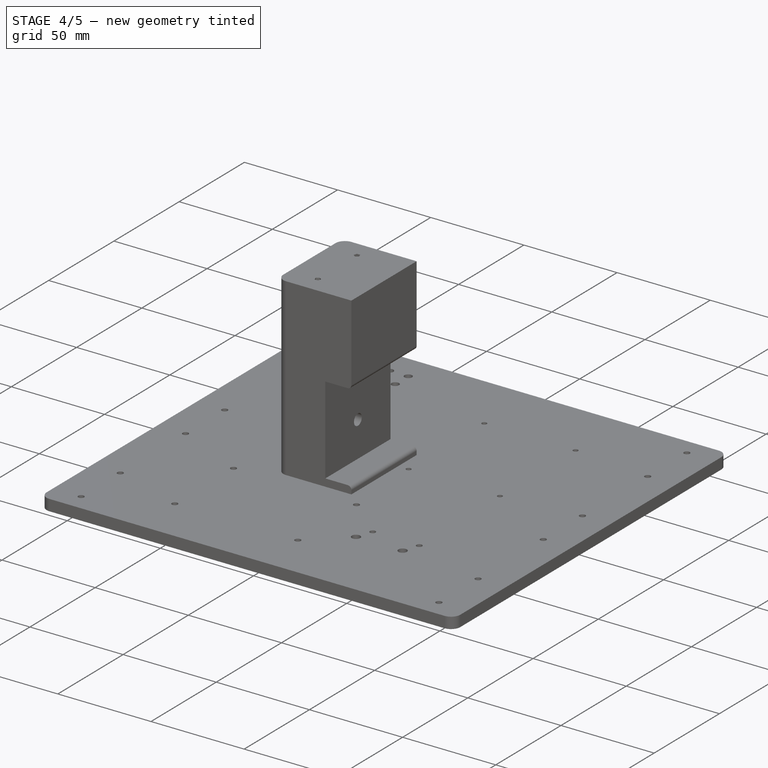
[diagram: stage 4 of 5 — iso view after this stage's code; geometry added in this stage tinted green]
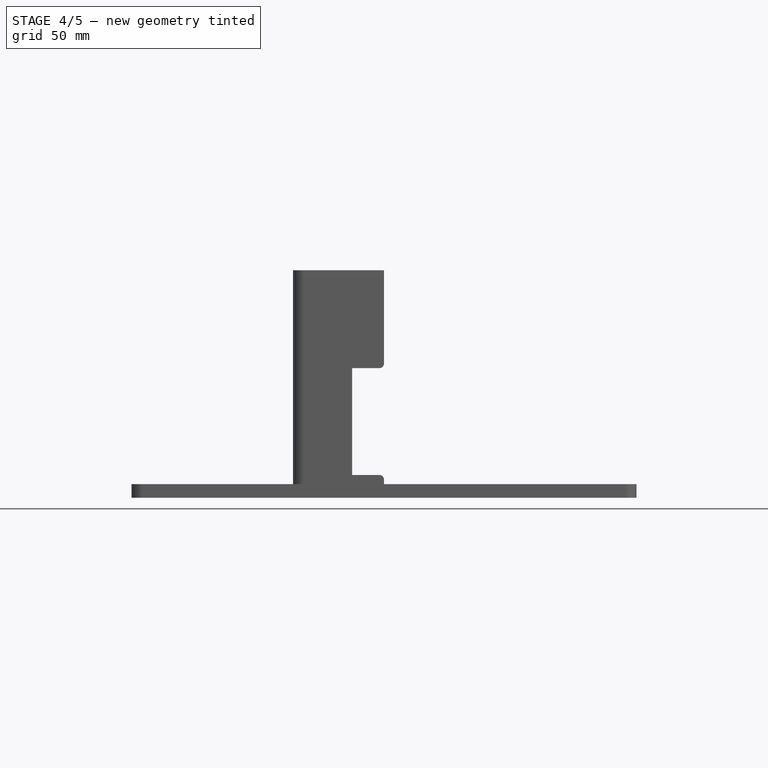
[diagram: stage 4 of 5 — front view after this stage's code; geometry added in this stage tinted green]
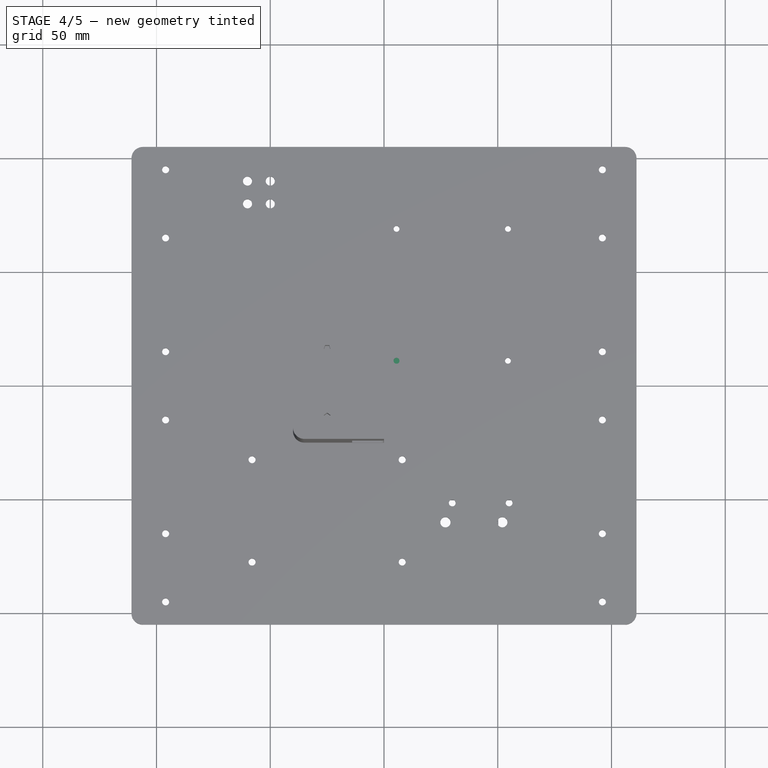
[diagram: stage 4 of 5 — top view after this stage's code; geometry added in this stage tinted green]
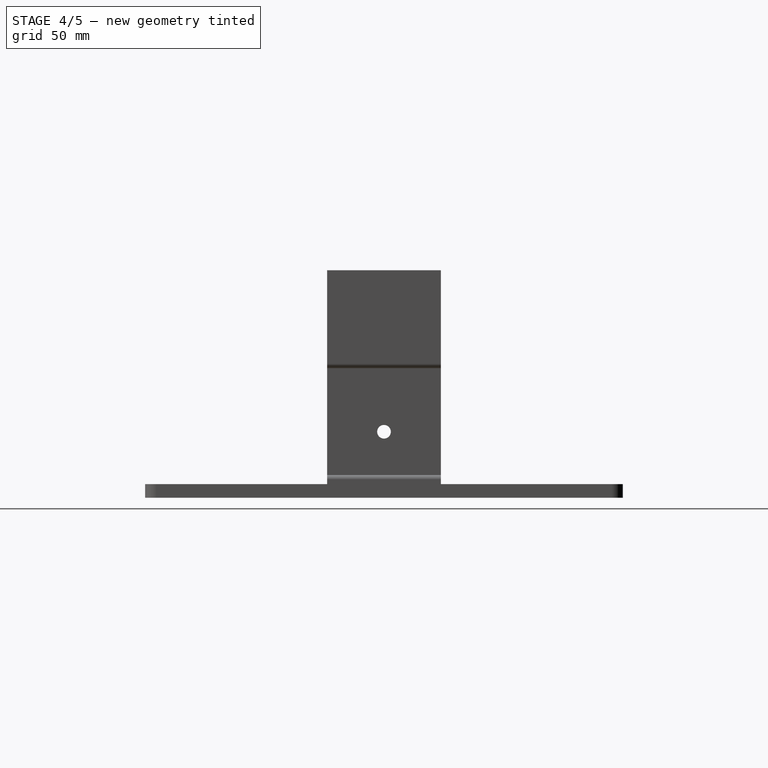
[diagram: stage 4 of 5 — right view after this stage's code; geometry added in this stage tinted green]
FEATURE [PartDesign::CoordinateSystem] LCS_Origin
  AttacherType = Attacher::AttachEngine3D
  MapMode = 2
  Support = -> [X_Axis]
FEATURE [Sketcher::SketchObject] Sketch
  FullyConstrained = true
  MapMode = 5
  Support = -> [XY_Plane001]
  sketch-geometry (4):
    g0: LineSegment StartX=-36 StartY=25.5 StartZ=0 EndX=36 EndY=25.5 EndZ=0
    g1: LineSegment StartX=36 StartY=25.5 StartZ=0 EndX=36 EndY=-25.5 EndZ=0
    g2: LineSegment StartX=36 StartY=-25.5 StartZ=0 EndX=-36 EndY=-25.5 EndZ=0
    g3: LineSegment StartX=-36 StartY=-25.5 StartZ=0 EndX=-36 EndY=25.5 EndZ=0
  constraints (10):
    c: Coincident(g0,g1)
    c: Coincident(g1,g2)
    c: Coincident(g2,g3)
    c: Coincident(g3,g0)
    c: Horizontal(g2)
    c: Vertical(g1)
    c: Symmetric(g0,g0,g-2)
    c: Symmetric(g0,g2,g-1)
    c: DistanceX(g0,g0) = 72
    c: DistanceY(g3,g3) = 51
FEATURE [PartDesign::Plane] DatumPlane  label="Relay_PCB_Thickness"
  AttachmentOffset = pos=(0,0,3) rot=(0,0,1;0rad)
  Length = 84.1194
  MapMode = 5
  Placement = pos=(0,0,3) rot=(0,0,1;0rad)
  ResizeMode = 0
  Support = -> [XY_Plane001]
  Width = 63.1194
FEATURE [PartDesign::Pad] Pad  label="Relay_PCB_PCB"
  Direction = (1,1,1)
  Length = 1.6
  Length2 = 100
  Profile = -> Sketch
  Type = 3
  UpToFace = -> DatumPlane [Plane]
FEATURE [Sketcher::SketchObject] Sketch001
  FullyConstrained = true
  MapMode = 5
  Placement = pos=(0,0,3) rot=(0,0,1;0rad)
  Support = -> [DatumPlane]
  sketch-geometry (8):
    g0: Circle CenterX=-33 CenterY=22.5 CenterZ=0 NormalX=0 NormalY=0 NormalZ=1 AngleXU=0 Radius=1.55
    g1: Circle CenterX=33 CenterY=22.5 CenterZ=0 NormalX=0 NormalY=0 NormalZ=1 AngleXU=0 Radius=1.55
    g2: Circle CenterX=-33 CenterY=-22.5 CenterZ=0 NormalX=0 NormalY=0 NormalZ=1 AngleXU=0 Radius=1.55
    g3: Circle CenterX=33 CenterY=-22.5 CenterZ=0 NormalX=0 NormalY=0 NormalZ=1 AngleXU=0 Radius=1.55
    g4: LineSegment StartX=-33 StartY=22.5 StartZ=0 EndX=33 EndY=22.5 EndZ=0
    g5: LineSegment StartX=33 StartY=22.5 StartZ=0 EndX=33 EndY=-22.5 EndZ=0
    g6: LineSegment StartX=33 StartY=-22.5 StartZ=0 EndX=-33 EndY=-22.5 EndZ=0
    g7: LineSegment StartX=-33 StartY=-22.5 StartZ=0 EndX=-33 EndY=22.5 EndZ=0
  constraints (18):
    c: Equal(g0,g1)
    c: Equal(g1,g2)
    c: Equal(g2,g3)
    c: Diameter(g1) = 3.1  'hole_diameter'
    c: Coincident(g4,g5)
    c: Coincident(g5,g6)
    c: Coincident(g6,g7)
    c: Coincident(g7,g4)
    c: Horizontal(g6)
    c: Vertical(g5)
    c: Symmetric(g4,g6,g-1)
    c: Symmetric(g4,g4,g-2)
    c: Coincident(g0,g4)
    c: Coincident(g2,g6)
    c: Coincident(g1,g4)
    c: Coincident(g3,g5)
    c: DistanceX(g4,g4) = 66
    c: DistanceY(g7,g7) = 45
FEATURE [PartDesign::Pocket] Pocket  label="Relay_PCB_Mounting_Holes"
  BaseFeature = -> Pad
  Length = 0
  Length2 = 100
  Profile = -> Sketch001
  Type = 3
  UpToFace = -> XY_Plane001
FEATURE [PartDesign::CoordinateSystem] Local_CS004  label="Raspberry_Pi_3_Standoff_Bottom"
  AttacherType = Attacher::AttachEngine3D
  MapMode = 45
  Placement = pos=(6.2e-15,1e-16,0) rot=(0,0,1;0rad)
  Support = -> [Pad004]
FEATURE [PartDesign::CoordinateSystem] Local_CS005  label="Raspberry_Pi_3_Standoff_Top"
  AttacherType = Attacher::AttachEngine3D
  MapMode = 45
  Placement = pos=(6.2e-15,1e-16,3) rot=(0,0,1;0rad)
  Support = -> [Pad004]
FEATURE [PartDesign::Body] Raspberry_Pi_3_standoff  label="Raspberry_Pi_3_Standoff"
  Group = -> [Sketch007,Pad004,Local_CS005,Local_CS004]
  Origin = -> Origin005
  Tip = -> Pad004
FEATURE [Sketcher::SketchObject] Sketch008
  FullyConstrained = true
  MapMode = 5
  Support = -> [XY_Plane006]
  sketch-geometry (2):
    g0: Circle CenterX=0 CenterY=0 CenterZ=0 NormalX=0 NormalY=0 NormalZ=1 AngleXU=0 Radius=3
    g1: Circle CenterX=0 CenterY=0 CenterZ=0 NormalX=0 NormalY=0 NormalZ=1 AngleXU=0 Radius=1.55
  constraints (4):
    c: Coincident(g0,g1)
    c: Coincident(g0,g-1)
    c: Diameter(g1) = 3.1
    c: Diameter(g0) = 6
FEATURE [PartDesign::Pad] Pad005  label="3mm_Standoff_Body"
  Direction = (1,1,1)
  Length = 3
  Length2 = 100
  Profile = -> Sketch008
  Type = 0
FEATURE [Sketcher::SketchObject] Sketch020  label="Photosensor_PCB_PCB_S"
  FullyConstrained = true
  MapMode = 5
  Support = -> [XY_Plane011]
  sketch-geometry (4):
    g0: LineSegment StartX=-7 StartY=15.5 StartZ=0 EndX=7 EndY=15.5 EndZ=0
    g1: LineSegment StartX=7 StartY=15.5 StartZ=0 EndX=7 EndY=-15.5 EndZ=0
    g2: LineSegment StartX=7 StartY=-15.5 StartZ=0 EndX=-7 EndY=-15.5 EndZ=0
    g3: LineSegment StartX=-7 StartY=-15.5 StartZ=0 EndX=-7 EndY=15.5 EndZ=0
  constraints (10):
    c: Coincident(g0,g1)
    c: Coincident(g1,g2)
    c: Coincident(g2,g3)
    c: Coincident(g3,g0)
    c: Horizontal(g2)
    c: Vertical(g1)
    c: Symmetric(g0,g0,g-2)
    c: Symmetric(g0,g2,g-1)
    c: DistanceX(g0,g0) = 14
    c: DistanceY(g1,g1) = 31
FEATURE [PartDesign::Plane] DatumPlane005
  AttachmentOffset = pos=(0,0,1.6) rot=(0,0,1;0rad)
  Length = 60
  MapMode = 5
  Placement = pos=(0,0,1.6) rot=(0,0,1;0rad)
  ResizeMode = 0
  Support = -> [XY_Plane011]
  Width = 60
FEATURE [PartDesign::Pad] Pad008  label="Photosensor_PCB_PCB"
  Direction = (1,1,1)
  Length = 10
  Length2 = 100
  Profile = -> Sketch020
  Type = 3
  UpToFace = -> DatumPlane005
FEATURE [Sketcher::SketchObject] Sketch021  label="Photosensor_PCB_Mounting_Hole_S"
  FullyConstrained = true
  MapMode = 5
  Placement = pos=(0,0,1.6) rot=(0,0,1;0rad)
  Support = -> [DatumPlane005]
  expr: Constraints[9] = Sketch020.Constraints[9]
  expr: Constraints[8] = Sketch020.Constraints[8]
  sketch-geometry (5):
    g0: LineSegment StartX=-7 StartY=15.5 StartZ=0 EndX=7 EndY=15.5 EndZ=0
    g1: LineSegment StartX=7 StartY=15.5 StartZ=0 EndX=7 EndY=-15.5 EndZ=0
    g2: LineSegment StartX=7 StartY=-15.5 StartZ=0 EndX=-7 EndY=-15.5 EndZ=0
    g3: LineSegment StartX=-7 StartY=-15.5 StartZ=0 EndX=-7 EndY=15.5 EndZ=0
    g4: Circle CenterX=0 CenterY=8.5 CenterZ=0 NormalX=0 NormalY=0 NormalZ=1 AngleXU=0 Radius=1.5
  constraints (13):
    c: Coincident(g0,g1)
    c: Coincident(g1,g2)
    c: Coincident(g2,g3)
    c: Coincident(g3,g0)
    c: Horizontal(g2)
    c: Vertical(g1)
    c: Symmetric(g0,g0,g-2)
    c: Symmetric(g0,g2,g-1)
    c: DistanceX(g0,g0) = 14
    c: DistanceY(g1,g1) = 31
    c: PointOnObject(g4,g-2)
    c: DistanceY(g4,g0) = 7
    c: Diameter(g4) = 3  'diameter'
FEATURE [PartDesign::Pocket] Pocket012  label="Photosensor_PCB_Mounting_Hole"
  BaseFeature = -> Pad008
  Length = 0
  Length2 = 100
  Profile = -> Sketch021
  Type = 3
  UpToFace = -> XY_Plane011
FEATURE [Sketcher::SketchObject] Sketch022  label="Photosensor_PCB_Adjust_Pot_S"
  FullyConstrained = true
  MapMode = 5
  Placement = pos=(0,0,1.6) rot=(0,0,1;0rad)
  Support = -> [DatumPlane005]
  expr: Constraints[9] = Sketch020.Constraints[9]
  expr: Constraints[8] = Sketch020.Constraints[8]
  sketch-geometry (5):
    g0: LineSegment StartX=-7 StartY=15.5 StartZ=0 EndX=7 EndY=15.5 EndZ=0
    g1: LineSegment StartX=7 StartY=15.5 StartZ=0 EndX=7 EndY=-15.5 EndZ=0
    g2: LineSegment StartX=7 StartY=-15.5 StartZ=0 EndX=-7 EndY=-15.5 EndZ=0
    g3: LineSegment StartX=-7 StartY=-15.5 StartZ=0 EndX=-7 EndY=15.5 EndZ=0
    g4: Circle CenterX=-3 CenterY=0 CenterZ=0 NormalX=0 NormalY=0 NormalZ=1 AngleXU=0 Radius=2.25
  constraints (13):
    c: Coincident(g0,g1)
    c: Coincident(g1,g2)
    c: Coincident(g2,g3)
    c: Coincident(g3,g0)
    c: Horizontal(g2)
    c: Vertical(g1)
    c: Symmetric(g0,g0,g-2)
    c: Symmetric(g0,g2,g-1)
    c: DistanceX(g0,g0) = 14
    c: DistanceY(g1,g1) = 31
    c: PointOnObject(g4,g-1)
    c: DistanceX(g4,g-1) = 3
    c: Diameter(g4) = 4.5
FEATURE [PartDesign::Pad] Pad009  label="Photosensor_PCB_Adjust_Pot"
  BaseFeature = -> Pocket012
  Direction = (1,1,1)
  Length = 1
  Length2 = 100
  Profile = -> Sketch022
  Type = 0
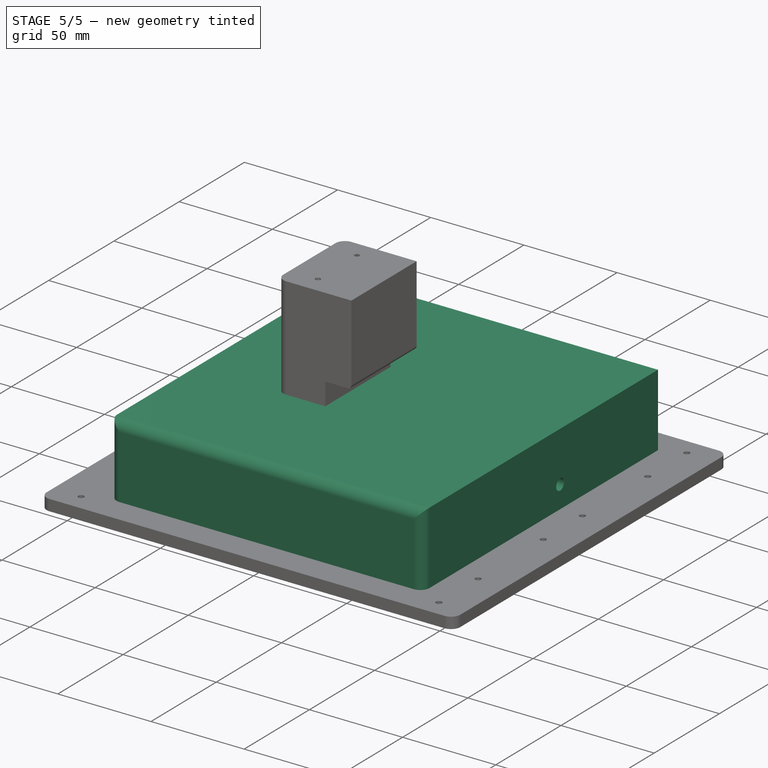
[diagram: stage 5 of 5 — iso view after this stage's code; geometry added in this stage tinted green]
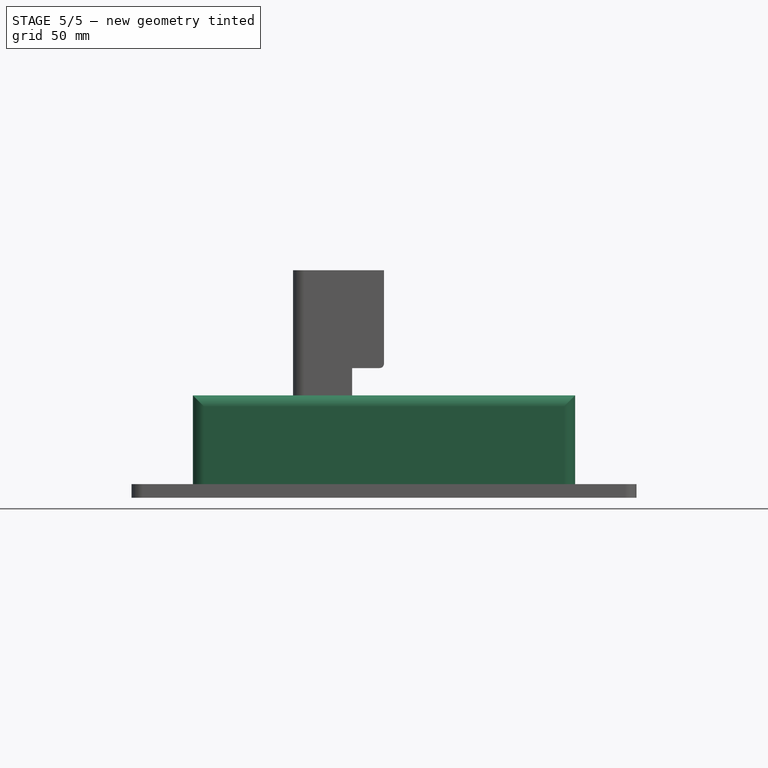
[diagram: stage 5 of 5 — front view after this stage's code; geometry added in this stage tinted green]
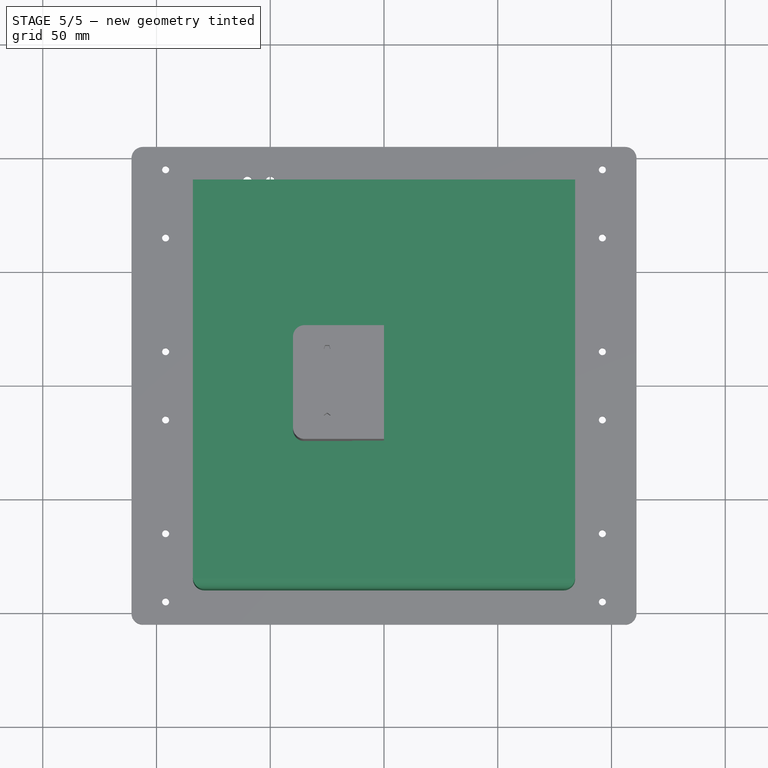
[diagram: stage 5 of 5 — top view after this stage's code; geometry added in this stage tinted green]
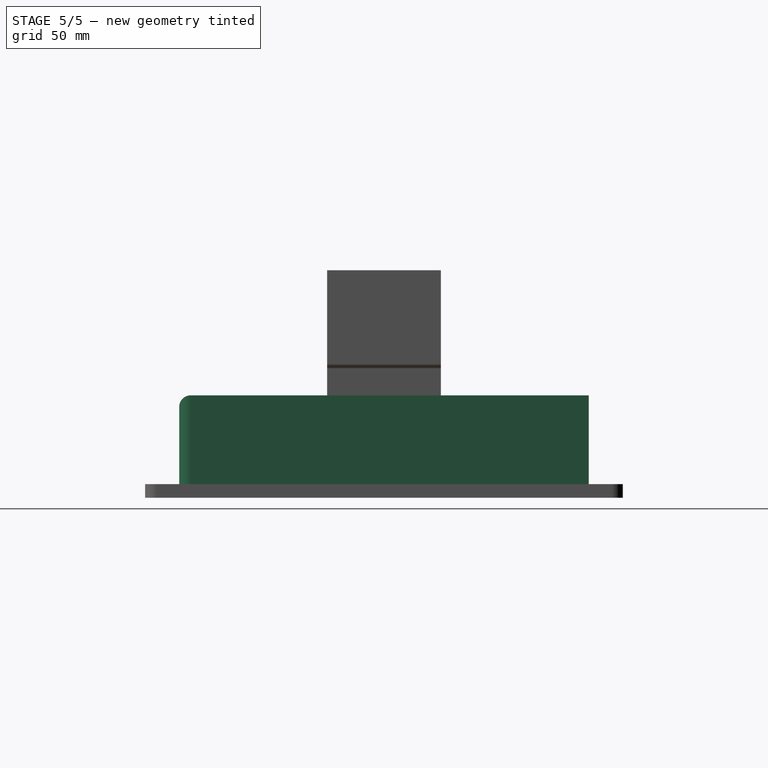
[diagram: stage 5 of 5 — right view after this stage's code; geometry added in this stage tinted green]
FEATURE [PartDesign::CoordinateSystem] Local_CS
  AttacherType = Attacher::AttachEngine3D
  MapMode = 45
  Placement = pos=(-33,-22.5,0) rot=(0,0,1;0rad)
  Support = -> [Pocket]
FEATURE [Sketcher::SketchObject] Sketch002
  FullyConstrained = true
  MapMode = 5
  Support = -> [XY_Plane002]
  sketch-geometry (8):
    g0: LineSegment StartX=-39.5 StartY=28 StartZ=0 EndX=39.5 EndY=28 EndZ=0
    g1: LineSegment StartX=42.5 StartY=25 StartZ=0 EndX=42.5 EndY=-25 EndZ=0
    g2: LineSegment StartX=39.5 StartY=-28 StartZ=0 EndX=-39.5 EndY=-28 EndZ=0
    g3: LineSegment StartX=-42.5 StartY=-25 StartZ=0 EndX=-42.5 EndY=25 EndZ=0
    g4: ArcOfCircle CenterX=-39.5 CenterY=25 CenterZ=0 NormalX=0 NormalY=0 NormalZ=1 AngleXU=0 Radius=3 StartAngle=1.5708 EndAngle=3.14159
    g5: ArcOfCircle CenterX=-39.5 CenterY=-25 CenterZ=0 NormalX=0 NormalY=0 NormalZ=1 AngleXU=0 Radius=3 StartAngle=3.14159 EndAngle=4.71239
    g6: ArcOfCircle CenterX=39.5 CenterY=-25 CenterZ=0 NormalX=0 NormalY=0 NormalZ=1 AngleXU=0 Radius=3 StartAngle=4.71239 EndAngle=6.28319
    g7: ArcOfCircle CenterX=39.5 CenterY=25 CenterZ=0 NormalX=0 NormalY=0 NormalZ=1 AngleXU=0 Radius=3 StartAngle=0 EndAngle=1.5708
  constraints (18):
    c: Horizontal(g0)
    c: Horizontal(g2)
    c: Vertical(g1)
    c: Vertical(g3)
    c: Tangent(g0,g4) = 1.5708
    c: Tangent(g3,g4) = 1.5708
    c: Tangent(g3,g5) = 1.5708
    c: Tangent(g2,g5) = 1.5708
    c: Tangent(g2,g6) = 1.5708
    c: Tangent(g1,g6) = 1.5708
    c: Tangent(g1,g7) = 1.5708
    c: Tangent(g0,g7) = 1.5708
    c: Equal(g5,g6)
    c: Radius(g7) = 3
    c: Symmetric(g0,g2,g-1)
    c: Symmetric(g3,g1,g-2)
    c: DistanceX(g3,g1) = 85
    c: DistanceY(g2,g0) = 56
FEATURE [PartDesign::Plane] DatumPlane001  label="Raspberry_Pi_3_Thickness"
  AttachmentOffset = pos=(0,0,1.6) rot=(0,0,1;0rad)
  Length = 98.7986
  MapMode = 5
  Placement = pos=(0,0,1.6) rot=(0,0,1;0rad)
  ResizeMode = 0
  Support = -> [XY_Plane002]
  Width = 69.7986
FEATURE [PartDesign::Pad] Pad001  label="Raspberry_Pi_3_PCB"
  Direction = (1,1,1)
  Length = 10
  Length2 = 100
  Profile = -> Sketch002
  Type = 3
  UpToFace = -> DatumPlane001 [Plane]
FEATURE [Sketcher::SketchObject] Sketch003
  FullyConstrained = true
  MapMode = 5
  Placement = pos=(0,0,1.6) rot=(0,0,1;0rad)
  Support = -> [DatumPlane001]
  expr: Constraints[35] = Sketch002.Constraints[17]
  expr: Constraints[34] = Sketch002.Constraints[16]
  expr: Constraints[31] = Sketch002.Constraints[13]
  sketch-geometry (16):
    g0: Circle CenterX=-39 CenterY=24.5 CenterZ=0 NormalX=0 NormalY=0 NormalZ=1 AngleXU=0 Radius=1.3
    g1: Circle CenterX=19 CenterY=24.5 CenterZ=0 NormalX=0 NormalY=0 NormalZ=1 AngleXU=0 Radius=1.3
    g2: Circle CenterX=-39 CenterY=-24.5 CenterZ=0 NormalX=0 NormalY=0 NormalZ=1 AngleXU=0 Radius=1.3
    g3: Circle CenterX=19 CenterY=-24.5 CenterZ=0 NormalX=0 NormalY=0 NormalZ=1 AngleXU=0 Radius=1.3
    g4: LineSegment StartX=-39 StartY=24.5 StartZ=0 EndX=19 EndY=24.5 EndZ=0
    g5: LineSegment StartX=19 StartY=24.5 StartZ=0 EndX=19 EndY=-24.5 EndZ=0
    g6: LineSegment StartX=19 StartY=-24.5 StartZ=0 EndX=-39 EndY=-24.5 EndZ=0
    g7: LineSegment StartX=-39 StartY=-24.5 StartZ=0 EndX=-39 EndY=24.5 EndZ=0
    g8: LineSegment StartX=-39.5 StartY=28 StartZ=0 EndX=39.5 EndY=28 EndZ=0
    g9: LineSegment StartX=42.5 StartY=25 StartZ=0 EndX=42.5 EndY=-25 EndZ=0
    g10: LineSegment StartX=39.5 StartY=-28 StartZ=0 EndX=-39.5 EndY=-28 EndZ=0
    g11: LineSegment StartX=-42.5 StartY=-25 StartZ=0 EndX=-42.5 EndY=25 EndZ=0
    g12: ArcOfCircle CenterX=-39.5 CenterY=25 CenterZ=0 NormalX=0 NormalY=0 NormalZ=1 AngleXU=0 Radius=3 StartAngle=1.5708 EndAngle=3.14159
    g13: ArcOfCircle CenterX=-39.5 CenterY=-25 CenterZ=0 NormalX=0 NormalY=0 NormalZ=1 AngleXU=0 Radius=3 StartAngle=3.14159 EndAngle=4.71239
    g14: ArcOfCircle CenterX=39.5 CenterY=-25 CenterZ=0 NormalX=0 NormalY=0 NormalZ=1 AngleXU=0 Radius=3 StartAngle=4.71239 EndAngle=6.28319
    g15: ArcOfCircle CenterX=39.5 CenterY=25 CenterZ=0 NormalX=0 NormalY=0 NormalZ=1 AngleXU=0 Radius=3 StartAngle=0 EndAngle=1.5708
  constraints (37):
    c: Equal(g0,g1)
    c: Equal(g1,g2)
    c: Equal(g2,g3)
    c: Diameter(g1) = 2.6  'hole_diameter'
    c: Coincident(g4,g5)
    c: Coincident(g5,g6)
    c: Coincident(g6,g7)
    c: Coincident(g7,g4)
    c: Horizontal(g4)
    c: Horizontal(g6)
    c: Vertical(g5)
    c: Symmetric(g4,g6,g-1)
    c: DistanceY(g7,g7) = 49
    c: DistanceX(g4,g4) = 58
    c: Coincident(g1,g4)
    c: Coincident(g3,g5)
    c: Coincident(g4,g0)
    c: Coincident(g6,g2)
    c: Horizontal(g8)
    c: Horizontal(g10)
    c: Vertical(g9)
    c: Vertical(g11)
    c: Tangent(g8,g12) = 1.5708
    c: Tangent(g11,g12) = 1.5708
    c: Tangent(g11,g13) = 1.5708
    c: Tangent(g10,g13) = 1.5708
    c: Tangent(g10,g14) = 1.5708
    c: Tangent(g9,g14) = 1.5708
    c: Tangent(g9,g15) = 1.5708
    c: Tangent(g8,g15) = 1.5708
    c: Equal(g13,g14)
    c: Radius(g15) = 3
    c: Symmetric(g8,g10,g-1)
    c: Symmetric(g11,g9,g-2)
    c: DistanceX(g11,g9) = 85
    c: DistanceY(g10,g8) = 56
    c: DistanceX(g11,g2) = 3.5
FEATURE [PartDesign::Pocket] Pocket001  label="Raspberry_Pi_3_Mounting_Holes"
  BaseFeature = -> Pad001
  Length = 0
  Length2 = 100
  Profile = -> Sketch003
  Type = 3
  UpToFace = -> XY_Plane002
FEATURE [Sketcher::SketchObject] Sketch005
  ExternalGeometry = -> [Pad002]
  FullyConstrained = true
  MapMode = 5
  Placement = pos=(84,0,0) rot=(0.57735,0.57735,0.57735;2.0944rad)
  Support = -> [Pad002]
  sketch-geometry (1):
    g0: Circle CenterX=15 CenterY=18 CenterZ=0 NormalX=0 NormalY=0 NormalZ=1 AngleXU=0 Radius=3
  constraints (3):
    c: DistanceX(g0,g-6) = 75
    c: DistanceY(g-6,g0) = 18  'y_offset'
    c: Diameter(g0) = 6
FEATURE [PartDesign::Pocket] Pocket002  label="Motorola_GM900_Mounting_Hole_Right"
  BaseFeature = -> Pad002
  Length = 8
  Length2 = 100
  Profile = -> Sketch005
  Type = 0
FEATURE [PartDesign::Mirrored] Mirrored  label="Motorola_GM900_Mounting_Hole_Left"
  BaseFeature = -> Pocket002
  MirrorPlane = -> YZ_Plane003
  Originals = -> [Pocket002]
FEATURE [PartDesign::CoordinateSystem] Local_CS001  label="Motorola_GM900_Mounting_Hole_Left_Pos"
  AttacherType = Attacher::AttachEngine3D
  MapMode = 45
  Placement = pos=(-84,15,18) rot=(0.57735,0.577351,0.57735;2.09439rad)
  Support = -> [Mirrored]
FEATURE [PartDesign::CoordinateSystem] Local_CS002  label="Motorola_GM900_Mounting_Hole_Right_Pos"
  AttacherType = Attacher::AttachEngine3D
  MapMode = 45
  Placement = pos=(84,15,18) rot=(0.57735,0.577351,0.57735;2.09439rad)
  Support = -> [Mirrored]
FEATURE [PartDesign::CoordinateSystem] Local_CS003  label="Raspberry_Pi_3_Hole_1_Bottom"
  AttacherType = Attacher::AttachEngine3D
  MapMode = 45
  Placement = pos=(19,24.5,0) rot=(0,0,1;4.7e-05rad)
  Support = -> [Pocket001]
FEATURE [Sketcher::SketchObject] Sketch007
  FullyConstrained = true
  MapMode = 5
  Support = -> [XY_Plane005]
  expr: Constraints[2] = Sketch003.Constraints.hole_diameter
  sketch-geometry (2):
    g0: Circle CenterX=0 CenterY=0 CenterZ=0 NormalX=0 NormalY=0 NormalZ=1 AngleXU=0 Radius=2.5
    g1: Circle CenterX=0 CenterY=0 CenterZ=0 NormalX=0 NormalY=0 NormalZ=1 AngleXU=0 Radius=1.3
  constraints (4):
    c: Coincident(g0,g1)
    c: Coincident(g0,g-1)
    c: Diameter(g1) = 2.6
    c: Diameter(g0) = 5
FEATURE [PartDesign::Pad] Pad004  label="Raspberry_Pi_3_Standoff_Body"
  Direction = (1,1,1)
  Length = 3
  Length2 = 100
  Profile = -> Sketch007
  Type = 0
FEATURE [PartDesign::CoordinateSystem] Local_CS019
  AttacherType = Attacher::AttachEngine3D
  MapMode = 45
  Placement = pos=(-96,80,6) rot=(0,0,1;0rad)
  Support = -> [Pocket007]
FEATURE [App::Link] Lower_Panel001  label="Lower_Panel_Ass"
  AssemblyType = Asm4EE
  AttachedBy = #LCS_0
  AttachedTo = Parent Assembly#LCS_Origin
  LinkedObject = -> Lower_Panel
  expr: Placement = LCS_Origin.Placement * AttachmentOffset * LCS_0.Placement ^ -1
FEATURE [App::Link] Pillar  label="Pillar_Left_Rear_Ass"
  AssemblyType = Asm4EE
  AttachedBy = #Local_CS016
  AttachedTo = Lower_Panel001#Local_CS019
  LinkPlacement = pos=(-71,80,6) rot=(0,0,1;0rad)
  LinkedObject = -> Corner_Pillar
  Placement = pos=(-71,80,6) rot=(0,0,1;0rad)
  expr: Placement = Lower_Panel001.Placement * Local_CS019.Placement * AttachmentOffset * Local_CS016.Placement ^ -1
FEATURE [App::Link] Pillar002  label="Pillar_Left_Front_Ass"
  AssemblyType = Asm4EE
  AttachedBy = #Local_CS016
  AttachedTo = Lower_Panel001#Local_CS021
  LinkPlacement = pos=(-71,-80,6) rot=(0,0,1;0rad)
  LinkedObject = -> Corner_Pillar
  Placement = pos=(-71,-80,6) rot=(0,0,1;0rad)
  expr: Placement = Lower_Panel001.Placement * Local_CS021.Placement * AttachmentOffset * Local_CS016.Placement ^ -1
FEATURE [App::Link] Pillar003  label="Pillar_Right_Rear_Ass"
  AssemblyType = Asm4EE
  AttachedBy = #Local_CS016
  AttachedTo = Lower_Panel001#Local_CS022
  AttachmentOffset = pos=(0,0,0) rot=(0,0,1;3.14159rad)
  LinkPlacement = pos=(71,80,6) rot=(0,0,-1;3.14159rad)
  LinkedObject = -> Corner_Pillar
  Placement = pos=(71,80,6) rot=(0,0,-1;3.14159rad)
  expr: Placement = Lower_Panel001.Placement * Local_CS022.Placement * AttachmentOffset * Local_CS016.Placement ^ -1
FEATURE [App::Link] Pillar005  label="Pillar_Right_Front_Ass"
  AssemblyType = Asm4EE
  AttachedBy = #Local_CS016
  AttachedTo = Lower_Panel001#Local_CS024
  AttachmentOffset = pos=(0,0,0) rot=(0,0,1;3.14159rad)
  LinkPlacement = pos=(71,-80,6) rot=(0,0,-1;3.14159rad)
  LinkedObject = -> Corner_Pillar
  Placement = pos=(71,-80,6) rot=(0,0,-1;3.14159rad)
  expr: Placement = Lower_Panel001.Placement * Local_CS024.Placement * AttachmentOffset * Local_CS016.Placement ^ -1
FEATURE [PartDesign::CoordinateSystem] Local_CS020
  AttacherType = Attacher::AttachEngine3D
  MapMode = 45
  Placement = pos=(-96,-1.5e-15,6) rot=(0,0,1;0rad)
  Support = -> [Pocket007]
FEATURE [PartDesign::CoordinateSystem] Local_CS021
  AttacherType = Attacher::AttachEngine3D
  MapMode = 45
  Placement = pos=(-96,-80,6) rot=(0,0,1;0rad)
  Support = -> [Pocket007]
FEATURE [PartDesign::CoordinateSystem] Local_CS022
  AttacherType = Attacher::AttachEngine3D
  MapMode = 45
  Placement = pos=(96,80,6) rot=(0,0,1;0rad)
  Support = -> [Pocket007]
FEATURE [PartDesign::CoordinateSystem] Local_CS023
  AttacherType = Attacher::AttachEngine3D
  MapMode = 45
  Placement = pos=(96,-1.5e-15,6) rot=(0,0,1;0rad)
  Support = -> [Pocket007]
FEATURE [PartDesign::CoordinateSystem] Local_CS024
  AttacherType = Attacher::AttachEngine3D
  MapMode = 45
  Placement = pos=(96,-80,6) rot=(0,0,1;0rad)
  Support = -> [Pocket007]
FEATURE [PartDesign::Body] Lower_Panel
  Group = -> [LCS_0,Sketch009,DatumPlane002,Pad006,Sketch015,Pocket007,Local_CS019,Local_CS020,Local_CS021,Local_CS022,Local_CS023,Local_CS024]
  Origin = -> Origin007
  Tip = -> Pocket007
FEATURE [App::Link] Motorola_GM900001  label="Motorola_GM900_Ass"
  AssemblyType = Asm4EE
  AttachedBy = #Local_CS001
  AttachedTo = Pillar_Radio_Mount#Local_CS037
  AttachmentOffset = pos=(0,0,1) rot=(0,0,1;0rad)
  LinkPlacement = pos=(-2.6859e-12,-15,17) rot=(-1,0,0;6.28318rad)
  LinkedObject = -> Motorola_GM900
  Placement = pos=(-2.6859e-12,-15,17) rot=(-1,0,0;6.28318rad)
  expr: Placement = Pillar_Radio_Mount.Placement * Local_CS037.Placement * AttachmentOffset * Local_CS001.Placement ^ -1
FEATURE [PartDesign::Fillet] Fillet001
  Base = -> Mirrored [Face6]
  BaseFeature = -> Mirrored
  Radius = 5
  SupportTransform = false
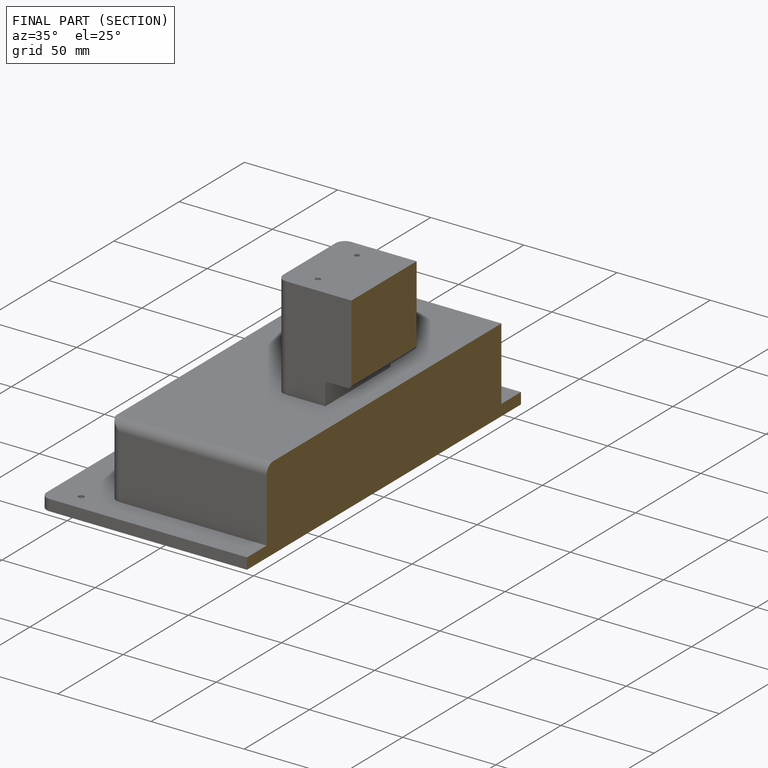
[diagram: finished part — half-section view (interior)]
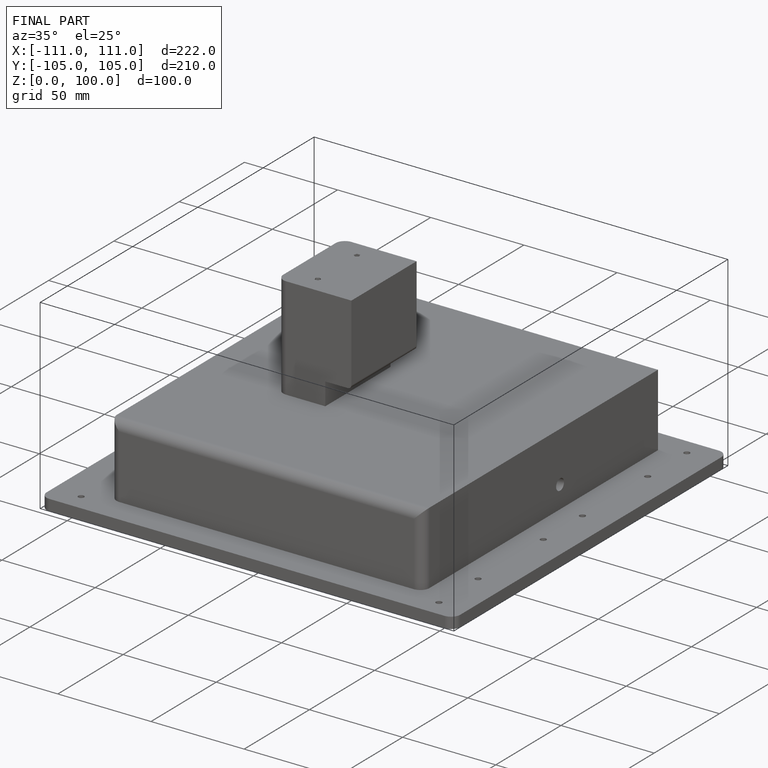
[diagram: finished part — iso view with bounding-box wireframe]
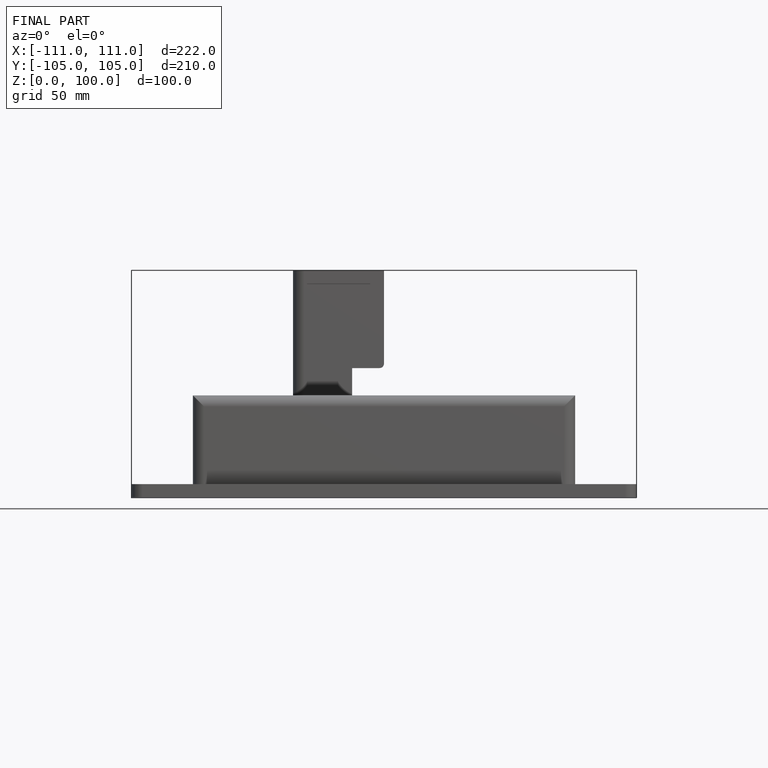
[diagram: finished part — front view with bounding-box wireframe]
